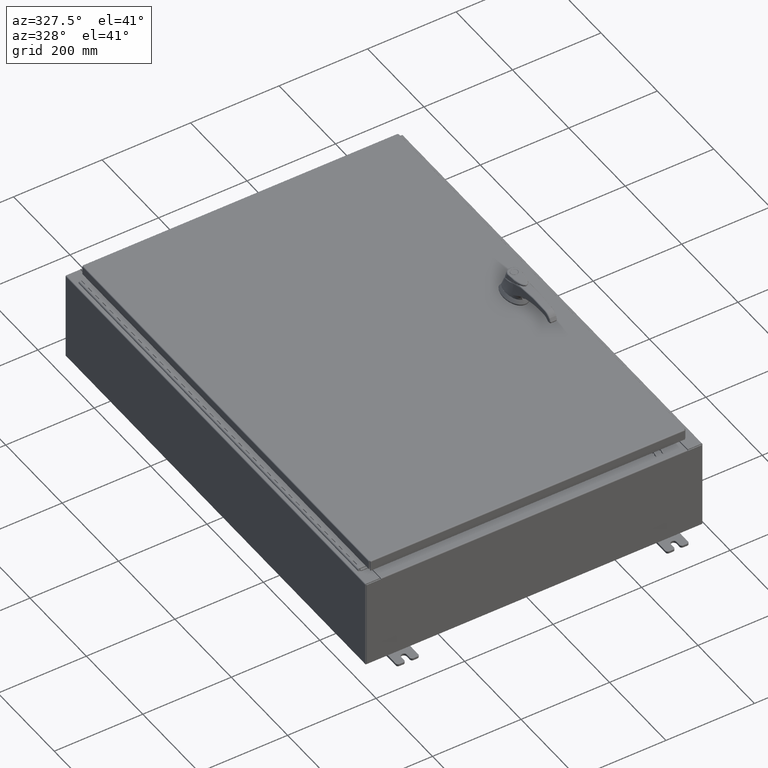
[diagram: clean part render]
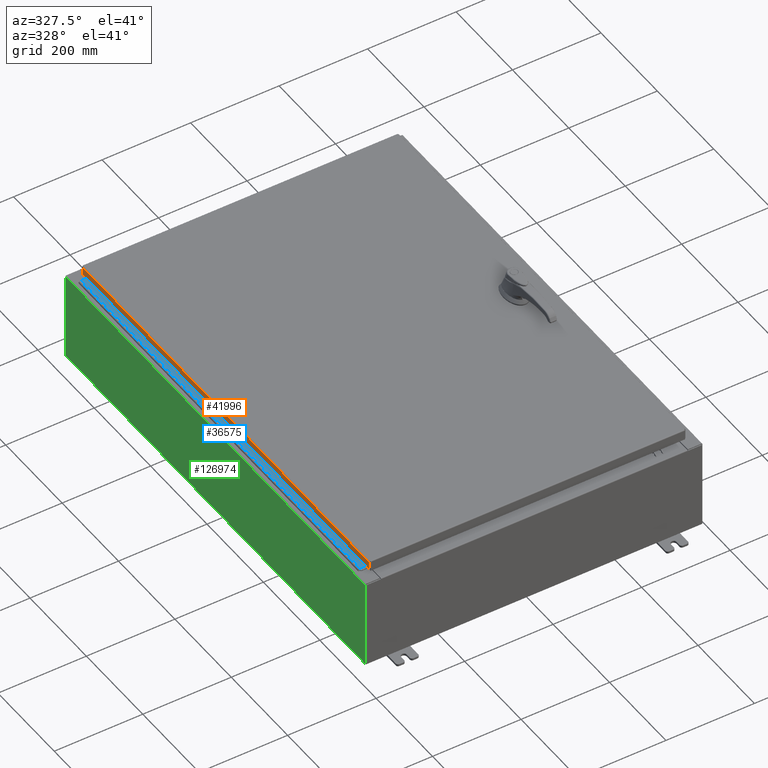
[diagram: same view with three faces highlighted in distinct colors, each labeled with its STEP entity id]
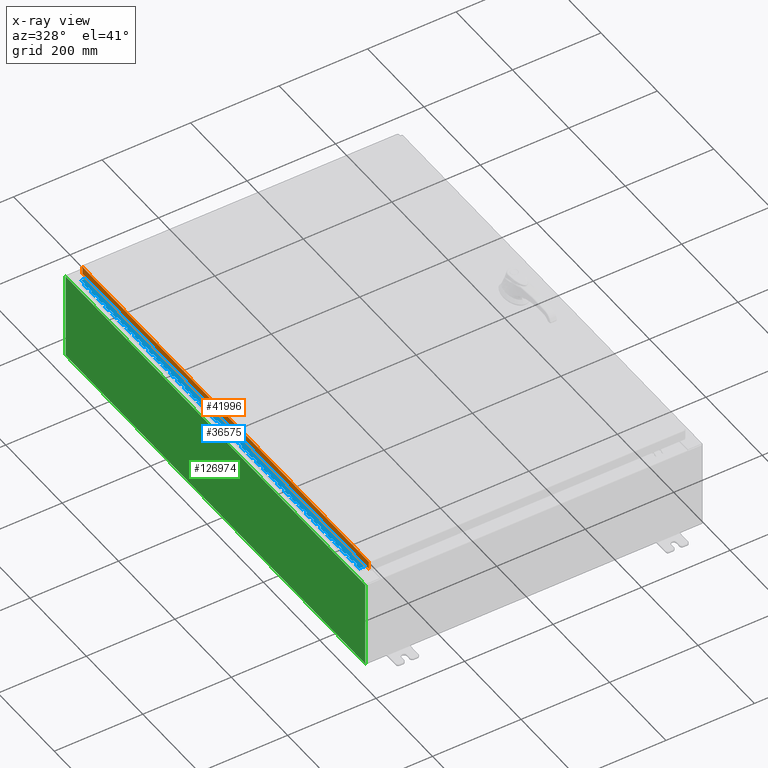
[diagram: x-ray of the same camera — body ghosted, the three highlighted faces saturated]
A machine part, auxiliary view with three faces highlighted in distinct colors.
The next image is the same camera in x-ray (body ghosted, the three faces saturated) — at least one of them is partly hidden behind the body in this view.
Their STEP definitions:

[orange] entity #41996 — the highlighted planar face has unit normal (1, 0, -0).
#120 = PLANE ( 'NONE',  #67719 ) ;
#3596 = DIRECTION ( 'NONE',  ( 4.379057701015054300E-047, 1.000000000000000000, 1.223580767541473800E-016 ) ) ;
#6570 = EDGE_CURVE ( 'NONE', #7761, #116508, #98997, .T. ) ;
#7761 = VERTEX_POINT ( 'NONE', #65073 ) ;
#9866 = EDGE_CURVE ( 'NONE', #7761, #104946, #62677, .T. ) ;
#10089 = DIRECTION ( 'NONE',  ( 1.000000000000000000, 3.712493866327201300E-031, -3.034122441942816500E-015 ) ) ;
#24381 = EDGE_LOOP ( 'NONE', ( #96529, #64665, #62062, #37432 ) ) ;
#25810 = CARTESIAN_POINT ( 'NONE',  ( -14.07799999999999900, 20.00515786437628000, -0.7949999999999948200 ) ) ;
#29916 = CARTESIAN_POINT ( 'NONE',  ( -14.07799999999999900, -20.00515786437626900, -0.7949999999999996000 ) ) ;
#32895 = VECTOR ( 'NONE', #44258, 39.37007874015748100 ) ;
#36218 = VECTOR ( 'NONE', #113776, 39.37007874015748100 ) ;
#37432 = ORIENTED_EDGE ( 'NONE', *, *, #63584, .F. ) ;
#41996 = ADVANCED_FACE ( 'NONE', ( #67602 ), #120, .F. ) ;
#44258 = DIRECTION ( 'NONE',  ( -3.034122441942816500E-015, 6.982962677686267500E-015, -1.000000000000000000 ) ) ;
#46086 = VECTOR ( 'NONE', #122749, 39.37007874015748100 ) ;
#49538 = LINE ( 'NONE', #112677, #72889 ) ;
#62062 = ORIENTED_EDGE ( 'NONE', *, *, #67024, .F. ) ;
#62677 = LINE ( 'NONE', #94307, #36218 ) ;
#63584 = EDGE_CURVE ( 'NONE', #116508, #73858, #92100, .T. ) ;
#64665 = ORIENTED_EDGE ( 'NONE', *, *, #9866, .T. ) ;
#65073 = CARTESIAN_POINT ( 'NONE',  ( -14.07799999999999800, 20.00515786437627200, -0.08770000000000004200 ) ) ;
#65832 = CARTESIAN_POINT ( 'NONE',  ( -14.07799999999999800, -20.00515786437626900, -0.08770000000000007000 ) ) ;
#67024 = EDGE_CURVE ( 'NONE', #73858, #104946, #49538, .T. ) ;
#67602 = FACE_OUTER_BOUND ( 'NONE', #24381, .T. ) ;
#67719 = AXIS2_PLACEMENT_3D ( 'NONE', #69209, #10089, #79667 ) ;
#69209 = CARTESIAN_POINT ( 'NONE',  ( -14.07799999999999800, -5.226448865015432600E-030, 4.297518939368254200E-014 ) ) ;
#72889 = VECTOR ( 'NONE', #3596, 39.37007874015748100 ) ;
#73858 = VERTEX_POINT ( 'NONE', #29916 ) ;
#75851 = CARTESIAN_POINT ( 'NONE',  ( -14.07799999999999800, -20.09400000000000800, -0.08770000000000004200 ) ) ;
#79667 = DIRECTION ( 'NONE',  ( -3.034122441942816500E-015, 0.0000000000000000000, -1.000000000000000000 ) ) ;
#92100 = LINE ( 'NONE', #93867, #32895 ) ;
#93867 = CARTESIAN_POINT ( 'NONE',  ( -14.07799999999999800, -20.00515786437627200, -0.07469999999999976700 ) ) ;
#94307 = CARTESIAN_POINT ( 'NONE',  ( -14.07799999999999800, 20.00515786437627200, 1.826704601218439800E-013 ) ) ;
#96529 = ORIENTED_EDGE ( 'NONE', *, *, #6570, .F. ) ;
#98997 = LINE ( 'NONE', #75851, #46086 ) ;
#104946 = VERTEX_POINT ( 'NONE', #25810 ) ;
#112677 = CARTESIAN_POINT ( 'NONE',  ( -14.07799999999999900, -20.09400000000000800, -0.7949999999999997100 ) ) ;
#113776 = DIRECTION ( 'NONE',  ( -3.034122441942816500E-015, 6.982962677686267500E-015, -1.000000000000000000 ) ) ;
#116508 = VERTEX_POINT ( 'NONE', #65832 ) ;
#122749 = DIRECTION ( 'NONE',  ( 3.712493866327201700E-031, -1.000000000000000000, -1.094373472637052200E-045 ) ) ;

[blue] entity #36575 — the highlighted planar face has unit normal (-0, -0, 1).
#31 = CARTESIAN_POINT ( 'NONE',  ( -0.6869999999999978300, 0.6754999999999996600, -19.50000000000000000 ) ) ;
#51 = LINE ( 'NONE', #66219, #26452 ) ;
#128 = CARTESIAN_POINT ( 'NONE',  ( -0.6869999999999978300, 0.6754999999999996600, -39.00000000000000000 ) ) ;
#206 = ORIENTED_EDGE ( 'NONE', *, *, #98090, .F. ) ;
#325 = VERTEX_POINT ( 'NONE', #2101 ) ;
#577 = EDGE_CURVE ( 'NONE', #35832, #5975, #69017, .T. ) ;
#618 = DIRECTION ( 'NONE',  ( 0.0000000000000000000, 0.0000000000000000000, 1.000000000000000000 ) ) ;
#792 = DIRECTION ( 'NONE',  ( 0.0000000000000000000, -0.0000000000000000000, -1.000000000000000000 ) ) ;
#796 = DIRECTION ( 'NONE',  ( 0.0000000000000000000, 0.0000000000000000000, 1.000000000000000000 ) ) ;
#813 = CARTESIAN_POINT ( 'NONE',  ( -0.6869999999999978300, 0.6754999999999996600, -6.000000000000000900 ) ) ;
#884 = CARTESIAN_POINT ( 'NONE',  ( -0.6869999999999973900, 0.8004999999999995500, -36.00000000000000000 ) ) ;
#913 = LINE ( 'NONE', #124470, #109744 ) ;
#949 = CARTESIAN_POINT ( 'NONE',  ( -0.6869999999999978300, 0.6754999999999996600, -39.00000000000000000 ) ) ;
#1123 = CARTESIAN_POINT ( 'NONE',  ( -0.6869999999999978300, 0.6754999999999996600, -14.99999999999999800 ) ) ;
#1166 = VERTEX_POINT ( 'NONE', #82883 ) ;
#1191 = DIRECTION ( 'NONE',  ( -3.389037039080723100E-015, -1.000000000000000000, 0.0000000000000000000 ) ) ;
#1273 = CARTESIAN_POINT ( 'NONE',  ( -0.6869999999999973900, 0.8004999999999995500, -38.50000000000000000 ) ) ;
#1307 = EDGE_CURVE ( 'NONE', #5598, #61040, #78281, .T. ) ;
#1389 = EDGE_CURVE ( 'NONE', #100426, #5523, #48704, .T. ) ;
#1512 = CARTESIAN_POINT ( 'NONE',  ( -0.6869999999999978300, 0.6754999999999996600, -23.00000000000000000 ) ) ;
#1588 = EDGE_CURVE ( 'NONE', #3765, #121617, #109275, .T. ) ;
#1599 = VERTEX_POINT ( 'NONE', #42857 ) ;
#1615 = EDGE_CURVE ( 'NONE', #115678, #103680, #53358, .T. ) ;
#1625 = LINE ( 'NONE', #87172, #107352 ) ;
#1656 = LINE ( 'NONE', #67209, #51431 ) ;
#1785 = DIRECTION ( 'NONE',  ( 0.0000000000000000000, 0.0000000000000000000, 1.000000000000000000 ) ) ;
#1868 = DIRECTION ( 'NONE',  ( 0.0000000000000000000, -0.0000000000000000000, -1.000000000000000000 ) ) ;
#2083 = VECTOR ( 'NONE', #117598, 39.37007874015748100 ) ;
#2101 = CARTESIAN_POINT ( 'NONE',  ( -0.6869999999999978300, 0.6754999999999996600, 0.0000000000000000000 ) ) ;
#2115 = CARTESIAN_POINT ( 'NONE',  ( -0.6869999999999982800, 0.5504999999999997700, -23.50000000000000000 ) ) ;
#2281 = DIRECTION ( 'NONE',  ( 3.389037039080723100E-015, 1.000000000000000000, -0.0000000000000000000 ) ) ;
#2360 = CARTESIAN_POINT ( 'NONE',  ( -0.6869999999999973900, 0.8004999999999995500, -27.00000000000000000 ) ) ;
#2656 = VERTEX_POINT ( 'NONE', #35595 ) ;
#2756 = LINE ( 'NONE', #104410, #52577 ) ;
#2797 = VERTEX_POINT ( 'NONE', #106836 ) ;
#2802 = CARTESIAN_POINT ( 'NONE',  ( -0.6869999999999973900, 0.8004999999999995500, -28.00000000000000000 ) ) ;
#3038 = LINE ( 'NONE', #76892, #105676 ) ;
#3091 = LINE ( 'NONE', #109427, #79343 ) ;
#3124 = VERTEX_POINT ( 'NONE', #4815 ) ;
#3203 = CARTESIAN_POINT ( 'NONE',  ( -0.6869999999999978300, 0.6754999999999996600, -23.50000000000000000 ) ) ;
#3213 = VERTEX_POINT ( 'NONE', #49841 ) ;
#3351 = CARTESIAN_POINT ( 'NONE',  ( -0.6869999999999982800, 0.5504999999999997700, -17.50000000000000000 ) ) ;
#3765 = VERTEX_POINT ( 'NONE', #111599 ) ;
#3845 = CARTESIAN_POINT ( 'NONE',  ( -0.6869999999999978300, 0.6754999999999996600, -39.00000000000000000 ) ) ;
#4040 = EDGE_CURVE ( 'NONE', #9369, #42471, #128826, .T. ) ;
#4045 = LINE ( 'NONE', #45039, #53875 ) ;
#4071 = EDGE_CURVE ( 'NONE', #120626, #12993, #79142, .T. ) ;
#4122 = DIRECTION ( 'NONE',  ( -3.389037039080723100E-015, -1.000000000000000000, 0.0000000000000000000 ) ) ;
#4145 = CARTESIAN_POINT ( 'NONE',  ( -0.6869999999999978300, 0.6754999999999996600, -1.499999999999999800 ) ) ;
#4391 = ORIENTED_EDGE ( 'NONE', *, *, #77489, .F. ) ;
#4446 = VERTEX_POINT ( 'NONE', #59930 ) ;
#4498 = ORIENTED_EDGE ( 'NONE', *, *, #88135, .F. ) ;
#4625 = VECTOR ( 'NONE', #796, 39.37007874015748100 ) ;
#4734 = VECTOR ( 'NONE', #76987, 39.37007874015748100 ) ;
#4815 = CARTESIAN_POINT ( 'NONE',  ( -0.6869999999999978300, 0.6754999999999996600, -5.000000000000000000 ) ) ;
#4899 = VECTOR ( 'NONE', #72610, 39.37007874015748100 ) ;
#4992 = CARTESIAN_POINT ( 'NONE',  ( -0.6869999999999978300, 0.6754999999999996600, -39.00000000000000000 ) ) ;
#4995 = CARTESIAN_POINT ( 'NONE',  ( -0.6869999999999973900, 0.8004999999999995500, -32.50000000000000000 ) ) ;
#5052 = VERTEX_POINT ( 'NONE', #54463 ) ;
#5105 = DIRECTION ( 'NONE',  ( 0.0000000000000000000, -0.0000000000000000000, -1.000000000000000000 ) ) ;
#5523 = VERTEX_POINT ( 'NONE', #37078 ) ;
#5530 = ORIENTED_EDGE ( 'NONE', *, *, #71035, .T. ) ;
#5569 = CARTESIAN_POINT ( 'NONE',  ( -0.6869999999999978300, 0.6754999999999996600, -39.00000000000000000 ) ) ;
#5598 = VERTEX_POINT ( 'NONE', #78702 ) ;
#5669 = ORIENTED_EDGE ( 'NONE', *, *, #96847, .F. ) ;
#5672 = EDGE_CURVE ( 'NONE', #23404, #66925, #29082, .T. ) ;
#5949 = CARTESIAN_POINT ( 'NONE',  ( -0.6869999999999982800, 0.5504999999999997700, -33.50000000000000000 ) ) ;
#5975 = VERTEX_POINT ( 'NONE', #104486 ) ;
#6139 = DIRECTION ( 'NONE',  ( -3.389037039080723100E-015, -1.000000000000000000, 0.0000000000000000000 ) ) ;
#6168 = DIRECTION ( 'NONE',  ( 0.0000000000000000000, 0.0000000000000000000, 1.000000000000000000 ) ) ;
#6285 = EDGE_CURVE ( 'NONE', #126738, #51296, #11880, .T. ) ;
#6299 = DIRECTION ( 'NONE',  ( 3.369016658928398200E-015, 1.000000000000000000, 0.0000000000000000000 ) ) ;
#6512 = LINE ( 'NONE', #59684, #79628 ) ;
#6616 = LINE ( 'NONE', #85336, #109216 ) ;
#6663 = CARTESIAN_POINT ( 'NONE',  ( -0.6869999999999982800, 0.5504999999999997700, -31.00000000000000000 ) ) ;
#6687 = LINE ( 'NONE', #57204, #109290 ) ;
#6823 = ORIENTED_EDGE ( 'NONE', *, *, #11753, .F. ) ;
#7067 = CARTESIAN_POINT ( 'NONE',  ( -0.6869999999999982800, 0.5504999999999997700, -30.50000000000000400 ) ) ;
#7125 = LINE ( 'NONE', #36118, #27308 ) ;
#7218 = LINE ( 'NONE', #79539, #109832 ) ;
#7324 = EDGE_CURVE ( 'NONE', #17865, #12605, #75566, .T. ) ;
#7602 = DIRECTION ( 'NONE',  ( 0.0000000000000000000, 0.0000000000000000000, 1.000000000000000000 ) ) ;
#7623 = CARTESIAN_POINT ( 'NONE',  ( -0.6869999999999973900, 0.8004999999999995500, -26.50000000000000400 ) ) ;
#7684 = ORIENTED_EDGE ( 'NONE', *, *, #123440, .F. ) ;
#7825 = CARTESIAN_POINT ( 'NONE',  ( -0.6869999999999978300, 0.6754999999999996600, -28.00000000000000000 ) ) ;
#7846 = VECTOR ( 'NONE', #57016, 39.37007874015748100 ) ;
#7942 = EDGE_CURVE ( 'NONE', #36048, #103254, #61420, .T. ) ;
#7981 = VECTOR ( 'NONE', #106276, 39.37007874015748100 ) ;
#8091 = EDGE_CURVE ( 'NONE', #67013, #66585, #48950, .T. ) ;
#8105 = CARTESIAN_POINT ( 'NONE',  ( -0.6869999999999982800, 0.5504999999999997700, -15.50000000000000000 ) ) ;
#8130 = ORIENTED_EDGE ( 'NONE', *, *, #66613, .F. ) ;
#8516 = VECTOR ( 'NONE', #21643, 39.37007874015748100 ) ;
#8561 = VERTEX_POINT ( 'NONE', #33944 ) ;
#8577 = ORIENTED_EDGE ( 'NONE', *, *, #57796, .F. ) ;
#8749 = ORIENTED_EDGE ( 'NONE', *, *, #71136, .F. ) ;
#8814 = LINE ( 'NONE', #63521, #111474 ) ;
#8831 = DIRECTION ( 'NONE',  ( 0.0000000000000000000, -0.0000000000000000000, -1.000000000000000000 ) ) ;
#8860 = EDGE_CURVE ( 'NONE', #45529, #51847, #78400, .T. ) ;
#8910 = CARTESIAN_POINT ( 'NONE',  ( -0.6869999999999973900, 0.8004999999999995500, -26.00000000000000000 ) ) ;
#8924 = EDGE_CURVE ( 'NONE', #127988, #51225, #45705, .T. ) ;
#8937 = CARTESIAN_POINT ( 'NONE',  ( -0.6869999999999982800, 0.5504999999999997700, -0.5000000000000000000 ) ) ;
#9344 = DIRECTION ( 'NONE',  ( 0.0000000000000000000, -0.0000000000000000000, -1.000000000000000000 ) ) ;
#9369 = VERTEX_POINT ( 'NONE', #86115 ) ;
#9560 = ORIENTED_EDGE ( 'NONE', *, *, #35501, .T. ) ;
#9820 = LINE ( 'NONE', #102267, #12950 ) ;
#9889 = VECTOR ( 'NONE', #92707, 39.37007874015748100 ) ;
#9908 = ORIENTED_EDGE ( 'NONE', *, *, #32533, .F. ) ;
#10131 = DIRECTION ( 'NONE',  ( -3.389037039080723100E-015, -1.000000000000000000, 0.0000000000000000000 ) ) ;
#10161 = CARTESIAN_POINT ( 'NONE',  ( -0.6869999999999978300, 0.6754999999999996600, -35.00000000000000000 ) ) ;
#10381 = CARTESIAN_POINT ( 'NONE',  ( -0.6869999999999978300, 0.6754999999999996600, -1.000000000000000000 ) ) ;
#10429 = LINE ( 'NONE', #7067, #63338 ) ;
#10828 = CARTESIAN_POINT ( 'NONE',  ( -0.6869999999999973900, 0.8004999999999995500, -7.499999999999999100 ) ) ;
#10996 = CARTESIAN_POINT ( 'NONE',  ( -0.6869999999999973900, 0.8004999999999995500, -30.50000000000000400 ) ) ;
#11144 = CARTESIAN_POINT ( 'NONE',  ( -0.6869999999999973900, 0.8004999999999995500, -37.50000000000000000 ) ) ;
#11538 = CARTESIAN_POINT ( 'NONE',  ( -0.6869999999999973900, 0.8004999999999995500, -19.00000000000000000 ) ) ;
#11753 = EDGE_CURVE ( 'NONE', #29217, #33639, #105930, .T. ) ;
#11779 = ORIENTED_EDGE ( 'NONE', *, *, #82481, .F. ) ;
#11787 = EDGE_CURVE ( 'NONE', #118797, #102182, #46857, .T. ) ;
#11818 = CARTESIAN_POINT ( 'NONE',  ( -0.6869999999999978300, 0.6754999999999996600, -34.50000000000000000 ) ) ;
#11821 = CARTESIAN_POINT ( 'NONE',  ( -0.6869999999999982800, 0.5504999999999997700, -7.499999999999999100 ) ) ;
#11853 = CARTESIAN_POINT ( 'NONE',  ( -0.6869999999999982800, 0.5504999999999997700, -21.50000000000000400 ) ) ;
#11880 = LINE ( 'NONE', #97942, #38301 ) ;
#11993 = CARTESIAN_POINT ( 'NONE',  ( -0.6869999999999978300, 0.6754999999999996600, -4.500000000000000000 ) ) ;
#12174 = EDGE_CURVE ( 'NONE', #43094, #45529, #45215, .T. ) ;
#12233 = VERTEX_POINT ( 'NONE', #117930 ) ;
#12327 = VECTOR ( 'NONE', #22102, 39.37007874015748100 ) ;
#12378 = VECTOR ( 'NONE', #93360, 39.37007874015748100 ) ;
#12539 = ORIENTED_EDGE ( 'NONE', *, *, #75071, .F. ) ;
#12593 = CARTESIAN_POINT ( 'NONE',  ( -0.6869999999999973900, 0.8004999999999995500, -34.50000000000000000 ) ) ;
#12605 = VERTEX_POINT ( 'NONE', #13557 ) ;
#12621 = CARTESIAN_POINT ( 'NONE',  ( -0.6869999999999973900, 0.8004999999999995500, -23.50000000000000000 ) ) ;
#12690 = EDGE_CURVE ( 'NONE', #48679, #325, #125984, .T. ) ;
#12742 = LINE ( 'NONE', #77533, #65633 ) ;
#12788 = ORIENTED_EDGE ( 'NONE', *, *, #38725, .F. ) ;
#12950 = VECTOR ( 'NONE', #42716, 39.37007874015748100 ) ;
#12968 = CARTESIAN_POINT ( 'NONE',  ( -0.6869999999999978300, 0.6754999999999996600, -20.50000000000000400 ) ) ;
#12993 = VERTEX_POINT ( 'NONE', #78684 ) ;
#13071 = VERTEX_POINT ( 'NONE', #99121 ) ;
#13168 = CARTESIAN_POINT ( 'NONE',  ( -0.6869999999999982800, 0.5504999999999997700, -9.500000000000000000 ) ) ;
#13182 = CARTESIAN_POINT ( 'NONE',  ( -0.6869999999999982800, 0.5504999999999997700, -11.50000000000000000 ) ) ;
#13368 = VERTEX_POINT ( 'NONE', #75570 ) ;
#13386 = LINE ( 'NONE', #91204, #112891 ) ;
#13557 = CARTESIAN_POINT ( 'NONE',  ( -0.6869999999999978300, 0.6754999999999996600, -22.00000000000000000 ) ) ;
#13685 = EDGE_CURVE ( 'NONE', #103688, #92766, #107173, .T. ) ;
#13713 = CARTESIAN_POINT ( 'NONE',  ( -0.6869999999999973900, 0.8004999999999995500, -34.00000000000000000 ) ) ;
#13727 = LINE ( 'NONE', #121736, #89975 ) ;
#13775 = LINE ( 'NONE', #27885, #66657 ) ;
#13856 = VECTOR ( 'NONE', #54614, 39.37007874015748100 ) ;
#13890 = ORIENTED_EDGE ( 'NONE', *, *, #90032, .T. ) ;
#13914 = CARTESIAN_POINT ( 'NONE',  ( -0.6869999999999973900, 0.8004999999999995500, -2.999999999999999600 ) ) ;
#14198 = DIRECTION ( 'NONE',  ( 3.389037039080723100E-015, 1.000000000000000000, -0.0000000000000000000 ) ) ;
#14265 = CARTESIAN_POINT ( 'NONE',  ( -0.6869999999999982800, 0.5504999999999997700, -32.50000000000000000 ) ) ;
#14302 = EDGE_CURVE ( 'NONE', #118277, #109664, #109103, .T. ) ;
#14361 = CARTESIAN_POINT ( 'NONE',  ( -0.6869999999999982800, 0.5504999999999997700, -20.50000000000000400 ) ) ;
#14448 = ORIENTED_EDGE ( 'NONE', *, *, #28570, .F. ) ;
#14455 = VECTOR ( 'NONE', #84597, 39.37007874015748100 ) ;
#14460 = ORIENTED_EDGE ( 'NONE', *, *, #106414, .F. ) ;
#14766 = EDGE_CURVE ( 'NONE', #102474, #17683, #31274, .T. ) ;
#14774 = LINE ( 'NONE', #38610, #117401 ) ;
#14853 = CARTESIAN_POINT ( 'NONE',  ( -0.6869999999999982800, 0.5504999999999997700, -39.00000000000000000 ) ) ;
#15400 = ORIENTED_EDGE ( 'NONE', *, *, #30290, .F. ) ;
#15438 = CARTESIAN_POINT ( 'NONE',  ( -0.6869999999999978300, 0.6754999999999996600, -17.99999999999999600 ) ) ;
#15593 = LINE ( 'NONE', #12593, #91828 ) ;
#15697 = CARTESIAN_POINT ( 'NONE',  ( -0.6869999999999982800, 0.5504999999999997700, -27.00000000000000000 ) ) ;
#15935 = CARTESIAN_POINT ( 'NONE',  ( -0.6869999999999982800, 0.5504999999999997700, -10.50000000000000000 ) ) ;
#15977 = VERTEX_POINT ( 'NONE', #126200 ) ;
#16191 = VECTOR ( 'NONE', #122785, 39.37007874015748100 ) ;
#16485 = EDGE_CURVE ( 'NONE', #12233, #106012, #57562, .T. ) ;
#16678 = CARTESIAN_POINT ( 'NONE',  ( -0.6869999999999973900, 0.8004999999999995500, -21.50000000000000400 ) ) ;
#16722 = EDGE_CURVE ( 'NONE', #70676, #92790, #88599, .T. ) ;
#16776 = LINE ( 'NONE', #119140, #69631 ) ;
#16949 = VERTEX_POINT ( 'NONE', #66312 ) ;
#17048 = VECTOR ( 'NONE', #31535, 39.37007874015748100 ) ;
#17115 = CARTESIAN_POINT ( 'NONE',  ( -0.6869999999999978300, 0.6754999999999996600, -16.00000000000000000 ) ) ;
#17311 = DIRECTION ( 'NONE',  ( 3.389037039080723100E-015, 1.000000000000000000, -0.0000000000000000000 ) ) ;
#17367 = EDGE_CURVE ( 'NONE', #125126, #109389, #54336, .T. ) ;
#17418 = CARTESIAN_POINT ( 'NONE',  ( -0.6869999999999982800, 0.5504999999999997700, -17.99999999999999600 ) ) ;
#17516 = EDGE_CURVE ( 'NONE', #28834, #61040, #91639, .T. ) ;
#17538 = CARTESIAN_POINT ( 'NONE',  ( -0.6869999999999978300, 0.6754999999999996600, -17.50000000000000000 ) ) ;
#17546 = CARTESIAN_POINT ( 'NONE',  ( -0.6869999999999978300, 0.6754999999999996600, -39.00000000000000000 ) ) ;
#17580 = LINE ( 'NONE', #4995, #14455 ) ;
#17669 = DIRECTION ( 'NONE',  ( 0.0000000000000000000, 0.0000000000000000000, 1.000000000000000000 ) ) ;
#17683 = VERTEX_POINT ( 'NONE', #27323 ) ;
#17687 = LINE ( 'NONE', #36207, #123357 ) ;
#17865 = VERTEX_POINT ( 'NONE', #100305 ) ;
#17934 = LINE ( 'NONE', #30582, #94149 ) ;
#17948 = CARTESIAN_POINT ( 'NONE',  ( -0.6869999999999982800, 0.5504999999999997700, -11.50000000000000000 ) ) ;
#17971 = CARTESIAN_POINT ( 'NONE',  ( -0.6869999999999978300, 0.6754999999999996600, -39.00000000000000000 ) ) ;
#17992 = EDGE_CURVE ( 'NONE', #19421, #105530, #90006, .T. ) ;
#18153 = CARTESIAN_POINT ( 'NONE',  ( -0.6869999999999982800, 0.5504999999999997700, -29.99999999999999600 ) ) ;
#18276 = DIRECTION ( 'NONE',  ( 0.0000000000000000000, -0.0000000000000000000, -1.000000000000000000 ) ) ;
#18701 = LINE ( 'NONE', #14361, #41984 ) ;
#18756 = CARTESIAN_POINT ( 'NONE',  ( -0.6869999999999978300, 0.6754999999999996600, -9.000000000000000000 ) ) ;
#18856 = ORIENTED_EDGE ( 'NONE', *, *, #73087, .F. ) ;
#19187 = LINE ( 'NONE', #29737, #121811 ) ;
#19278 = VECTOR ( 'NONE', #99356, 39.37007874015748100 ) ;
#19421 = VERTEX_POINT ( 'NONE', #33335 ) ;
#19481 = ORIENTED_EDGE ( 'NONE', *, *, #79391, .F. ) ;
#19562 = DIRECTION ( 'NONE',  ( 0.0000000000000000000, -0.0000000000000000000, -1.000000000000000000 ) ) ;
#19628 = CARTESIAN_POINT ( 'NONE',  ( -0.6869999999999982800, 0.5504999999999997700, -19.50000000000000000 ) ) ;
#19908 = VECTOR ( 'NONE', #48429, 39.37007874015748100 ) ;
#20162 = VERTEX_POINT ( 'NONE', #94364 ) ;
#20282 = VERTEX_POINT ( 'NONE', #58636 ) ;
#20371 = LINE ( 'NONE', #115839, #96614 ) ;
#20400 = VERTEX_POINT ( 'NONE', #99861 ) ;
#20406 = VECTOR ( 'NONE', #103636, 39.37007874015748100 ) ;
#20437 = EDGE_CURVE ( 'NONE', #35957, #117905, #83413, .T. ) ;
#20644 = VERTEX_POINT ( 'NONE', #64164 ) ;
#20698 = DIRECTION ( 'NONE',  ( 3.389037039080723100E-015, 1.000000000000000000, -0.0000000000000000000 ) ) ;
#20775 = LINE ( 'NONE', #54712, #120284 ) ;
#20904 = VERTEX_POINT ( 'NONE', #100196 ) ;
#21340 = VECTOR ( 'NONE', #99098, 39.37007874015748100 ) ;
#21360 = ORIENTED_EDGE ( 'NONE', *, *, #1307, .F. ) ;
#21567 = CARTESIAN_POINT ( 'NONE',  ( -0.6869999999999982800, 0.5504999999999997700, -14.49999999999999800 ) ) ;
#21643 = DIRECTION ( 'NONE',  ( 3.389037039080723100E-015, 1.000000000000000000, -0.0000000000000000000 ) ) ;
#21675 = ORIENTED_EDGE ( 'NONE', *, *, #48727, .F. ) ;
#21704 = LINE ( 'NONE', #80571, #124283 ) ;
#21742 = LINE ( 'NONE', #93883, #94897 ) ;
#21826 = VECTOR ( 'NONE', #51560, 39.37007874015748100 ) ;
#22102 = DIRECTION ( 'NONE',  ( -3.389037039080723100E-015, -1.000000000000000000, 0.0000000000000000000 ) ) ;
#22187 = CARTESIAN_POINT ( 'NONE',  ( -0.6869999999999982800, 0.5504999999999997700, -14.00000000000000000 ) ) ;
#22381 = ORIENTED_EDGE ( 'NONE', *, *, #35218, .F. ) ;
#22386 = VECTOR ( 'NONE', #47660, 39.37007874015748100 ) ;
#22504 = DIRECTION ( 'NONE',  ( 0.0000000000000000000, 0.0000000000000000000, 1.000000000000000000 ) ) ;
#22514 = ORIENTED_EDGE ( 'NONE', *, *, #71543, .F. ) ;
#22642 = LINE ( 'NONE', #125713, #72443 ) ;
#22678 = ORIENTED_EDGE ( 'NONE', *, *, #64946, .F. ) ;
#22699 = LINE ( 'NONE', #48956, #75645 ) ;
#22829 = VERTEX_POINT ( 'NONE', #111537 ) ;
#22840 = LINE ( 'NONE', #5949, #122344 ) ;
#22997 = VERTEX_POINT ( 'NONE', #4145 ) ;
#23190 = LINE ( 'NONE', #13182, #125776 ) ;
#23256 = VERTEX_POINT ( 'NONE', #67550 ) ;
#23354 = CARTESIAN_POINT ( 'NONE',  ( -0.6869999999999998300, 0.07549999999999991400, -39.00000000000000000 ) ) ;
#23404 = VERTEX_POINT ( 'NONE', #108357 ) ;
#23451 = LINE ( 'NONE', #71845, #122933 ) ;
#23645 = ORIENTED_EDGE ( 'NONE', *, *, #54760, .F. ) ;
#23692 = VECTOR ( 'NONE', #6168, 39.37007874015748100 ) ;
#23703 = CARTESIAN_POINT ( 'NONE',  ( -0.6869999999999982800, 0.5504999999999997700, -22.50000000000000000 ) ) ;
#23769 = CARTESIAN_POINT ( 'NONE',  ( -0.6869999999999973900, 0.8004999999999995500, -4.000000000000000000 ) ) ;
#23916 = LINE ( 'NONE', #69704, #100118 ) ;
#24020 = VECTOR ( 'NONE', #125910, 39.37007874015748100 ) ;
#24041 = CARTESIAN_POINT ( 'NONE',  ( -0.6869999999999982800, 0.5504999999999997700, -5.500000000000000000 ) ) ;
#24055 = EDGE_CURVE ( 'NONE', #96510, #3765, #112546, .T. ) ;
#24140 = LINE ( 'NONE', #99743, #70804 ) ;
#24146 = VECTOR ( 'NONE', #56211, 39.37007874015748100 ) ;
#24155 = ORIENTED_EDGE ( 'NONE', *, *, #104214, .F. ) ;
#24261 = VERTEX_POINT ( 'NONE', #31 ) ;
#24314 = DIRECTION ( 'NONE',  ( 0.0000000000000000000, 0.0000000000000000000, 1.000000000000000000 ) ) ;
#24318 = ORIENTED_EDGE ( 'NONE', *, *, #31954, .F. ) ;
#24405 = EDGE_LOOP ( 'NONE', ( #4498, #9560, #7684, #113602, #51086, #21360, #41643, #105842, #31389, #108576, #8749, #87811, #64922, #40297, #51754, #38930, #119577, #93995, #46333, #24318, #53488, #126411, #59803, #50725, #105778, #206, #97675, #109235, #76186, #68018, #24155, #75150, #96129, #48075, #11779, #15400, #43920, #27000, #48187, #12788, #80428, #85666, #4391, #12539, #48755, #126966, #82244, #84296, #94103, #19481, #60806, #9908, #69125, #123979, #42172, #25157, #13890, #32558, #64214, #14448, #75057, #100398, #86019, #81848, #103553, #118174, #124941, #86021, #26356, #118247, #127809, #78446, #44918, #51548, #48588, #128055, #58330, #77001, #28993, #69335, #55003, #104175, #119769, #6823, #63332, #84000, #40898, #62614, #113852, #120277, #23645, #92392, #128504, #63132, #108087, #80197, #90411, #122946, #111026, #103268, #55652, #80574, #8577, #103134, #41592, #30206, #105260, #39181, #24438, #52532, #106674, #81902, #122825, #21675, #92695, #26285, #32179, #121634, #67289, #48936, #124136, #30790, #67704, #124459, #24773, #14460, #81830, #126817, #33229, #32615, #94420, #18856, #99681, #94508, #87032, #90298, #115913, #8130, #5669, #22678, #57079, #37641, #22514, #115373, #100824, #91318, #60250, #71009, #50090, #22381, #118611, #116283, #5530, #127686, #48451, #101945, #88792, #99275 ) ) ;
#24438 = ORIENTED_EDGE ( 'NONE', *, *, #117573, .T. ) ;
#24643 = CARTESIAN_POINT ( 'NONE',  ( -0.6869999999999978300, 0.6754999999999996600, -33.50000000000000000 ) ) ;
#24690 = VERTEX_POINT ( 'NONE', #52876 ) ;
#24773 = ORIENTED_EDGE ( 'NONE', *, *, #46592, .T. ) ;
#24793 = LINE ( 'NONE', #8910, #100965 ) ;
#24922 = EDGE_CURVE ( 'NONE', #16949, #5598, #6687, .T. ) ;
#24981 = VERTEX_POINT ( 'NONE', #28001 ) ;
#25157 = ORIENTED_EDGE ( 'NONE', *, *, #42535, .F. ) ;
#25199 = DIRECTION ( 'NONE',  ( 0.0000000000000000000, -0.0000000000000000000, -1.000000000000000000 ) ) ;
#25234 = LINE ( 'NONE', #67466, #127814 ) ;
#25406 = VECTOR ( 'NONE', #48479, 39.37007874015748100 ) ;
#25438 = CARTESIAN_POINT ( 'NONE',  ( -0.6869999999999982800, 0.5504999999999997700, -28.99999999999999600 ) ) ;
#25722 = DIRECTION ( 'NONE',  ( 3.389037039080723100E-015, 1.000000000000000000, -0.0000000000000000000 ) ) ;
#26115 = LINE ( 'NONE', #58112, #75945 ) ;
#26197 = LINE ( 'NONE', #15935, #128790 ) ;
#26285 = ORIENTED_EDGE ( 'NONE', *, *, #47045, .F. ) ;
#26356 = ORIENTED_EDGE ( 'NONE', *, *, #125104, .T. ) ;
#26452 = VECTOR ( 'NONE', #46242, 39.37007874015748100 ) ;
#26702 = CARTESIAN_POINT ( 'NONE',  ( -0.6869999999999982800, 0.5504999999999997700, -29.50000000000000000 ) ) ;
#26793 = VERTEX_POINT ( 'NONE', #76557 ) ;
#26910 = CARTESIAN_POINT ( 'NONE',  ( -0.6869999999999982800, 0.5504999999999997700, -18.50000000000000000 ) ) ;
#26984 = CARTESIAN_POINT ( 'NONE',  ( -0.6869999999999982800, 0.5504999999999997700, -2.999999999999999600 ) ) ;
#27000 = ORIENTED_EDGE ( 'NONE', *, *, #6285, .F. ) ;
#27178 = EDGE_CURVE ( 'NONE', #23256, #107775, #44068, .T. ) ;
#27306 = VECTOR ( 'NONE', #59673, 39.37007874015748100 ) ;
#27308 = VECTOR ( 'NONE', #6139, 39.37007874015748100 ) ;
#27323 = CARTESIAN_POINT ( 'NONE',  ( -0.6869999999999982800, 0.5504999999999997700, -6.000000000000000900 ) ) ;
#27472 = DIRECTION ( 'NONE',  ( 0.0000000000000000000, 0.0000000000000000000, 1.000000000000000000 ) ) ;
#27562 = EDGE_CURVE ( 'NONE', #55803, #51296, #95402, .T. ) ;
#27885 = CARTESIAN_POINT ( 'NONE',  ( -0.6869999999999973900, 0.8004999999999995500, -33.50000000000000000 ) ) ;
#28001 = CARTESIAN_POINT ( 'NONE',  ( -0.6869999999999978300, 0.6754999999999996600, -8.500000000000000000 ) ) ;
#28038 = LINE ( 'NONE', #11538, #21826 ) ;
#28153 = DIRECTION ( 'NONE',  ( 3.389037039080723100E-015, 1.000000000000000000, -0.0000000000000000000 ) ) ;
#28184 = CARTESIAN_POINT ( 'NONE',  ( -0.6869999999999982800, 0.5504999999999997700, -12.99999999999999800 ) ) ;
#28380 = VERTEX_POINT ( 'NONE', #14853 ) ;
#28467 = VECTOR ( 'NONE', #53168, 39.37007874015748100 ) ;
#28494 = LINE ( 'NONE', #98056, #25406 ) ;
#28570 = EDGE_CURVE ( 'NONE', #101735, #120626, #107800, .T. ) ;
#28593 = EDGE_CURVE ( 'NONE', #113191, #96510, #28494, .T. ) ;
#28711 = EDGE_CURVE ( 'NONE', #30048, #126738, #19187, .T. ) ;
#28834 = VERTEX_POINT ( 'NONE', #80206 ) ;
#28845 = DIRECTION ( 'NONE',  ( 3.389037039080723100E-015, 1.000000000000000000, -0.0000000000000000000 ) ) ;
#28993 = ORIENTED_EDGE ( 'NONE', *, *, #31701, .F. ) ;
#29082 = LINE ( 'NONE', #108024, #52476 ) ;
#29217 = VERTEX_POINT ( 'NONE', #109552 ) ;
#29314 = VERTEX_POINT ( 'NONE', #120410 ) ;
#29426 = VERTEX_POINT ( 'NONE', #103396 ) ;
#29651 = DIRECTION ( 'NONE',  ( 3.389037039080723100E-015, 1.000000000000000000, -0.0000000000000000000 ) ) ;
#29737 = CARTESIAN_POINT ( 'NONE',  ( -0.6869999999999982800, 0.5504999999999997700, -29.50000000000000000 ) ) ;
#30048 = VERTEX_POINT ( 'NONE', #26702 ) ;
#30206 = ORIENTED_EDGE ( 'NONE', *, *, #64667, .F. ) ;
#30290 = EDGE_CURVE ( 'NONE', #55803, #36403, #121557, .T. ) ;
#30582 = CARTESIAN_POINT ( 'NONE',  ( -0.6869999999999978300, 0.6754999999999996600, -39.00000000000000000 ) ) ;
#30638 = LINE ( 'NONE', #85900, #106871 ) ;
#30670 = VERTEX_POINT ( 'NONE', #17115 ) ;
#30790 = ORIENTED_EDGE ( 'NONE', *, *, #65962, .F. ) ;
#30963 = LINE ( 'NONE', #7623, #63706 ) ;
#31011 = CARTESIAN_POINT ( 'NONE',  ( -0.6869999999999973900, 0.8004999999999995500, -17.99999999999999600 ) ) ;
#31181 = VECTOR ( 'NONE', #19562, 39.37007874015748100 ) ;
#31274 = LINE ( 'NONE', #46776, #7981 ) ;
#31326 = CARTESIAN_POINT ( 'NONE',  ( -0.6869999999999982800, 0.5504999999999997700, -4.500000000000000000 ) ) ;
#31389 = ORIENTED_EDGE ( 'NONE', *, *, #105372, .T. ) ;
#31405 = CARTESIAN_POINT ( 'NONE',  ( -0.6869999999999982800, 0.5504999999999997700, -23.99999999999999600 ) ) ;
#31535 = DIRECTION ( 'NONE',  ( 0.0000000000000000000, -0.0000000000000000000, -1.000000000000000000 ) ) ;
#31701 = EDGE_CURVE ( 'NONE', #26793, #24690, #80943, .T. ) ;
#31765 = CARTESIAN_POINT ( 'NONE',  ( -0.6869999999999978300, 0.6754999999999996600, -9.500000000000000000 ) ) ;
#31850 = CARTESIAN_POINT ( 'NONE',  ( -0.6869999999999982800, 0.5504999999999997700, -36.50000000000000000 ) ) ;
#31954 = EDGE_CURVE ( 'NONE', #51618, #77225, #15593, .T. ) ;
#32173 = CARTESIAN_POINT ( 'NONE',  ( -0.6869999999999973900, 0.8004999999999995500, -32.00000000000000000 ) ) ;
#32179 = ORIENTED_EDGE ( 'NONE', *, *, #48836, .T. ) ;
#32208 = LINE ( 'NONE', #17971, #58704 ) ;
#32533 = EDGE_CURVE ( 'NONE', #29314, #70749, #30963, .T. ) ;
#32558 = ORIENTED_EDGE ( 'NONE', *, *, #52064, .F. ) ;
#32615 = ORIENTED_EDGE ( 'NONE', *, *, #124230, .F. ) ;
#32645 = FACE_OUTER_BOUND ( 'NONE', #24405, .T. ) ;
#32654 = EDGE_CURVE ( 'NONE', #107775, #1166, #24793, .T. ) ;
#33003 = VERTEX_POINT ( 'NONE', #57922 ) ;
#33229 = ORIENTED_EDGE ( 'NONE', *, *, #122296, .T. ) ;
#33335 = CARTESIAN_POINT ( 'NONE',  ( -0.6869999999999978300, 0.6754999999999996600, -14.49999999999999800 ) ) ;
#33373 = CARTESIAN_POINT ( 'NONE',  ( -0.6869999999999978300, 0.6754999999999996600, -29.50000000000000000 ) ) ;
#33467 = DIRECTION ( 'NONE',  ( 0.0000000000000000000, 0.0000000000000000000, 1.000000000000000000 ) ) ;
#33639 = VERTEX_POINT ( 'NONE', #26910 ) ;
#33896 = CARTESIAN_POINT ( 'NONE',  ( -0.6869999999999982800, 0.5504999999999997700, -2.500000000000000000 ) ) ;
#33944 = CARTESIAN_POINT ( 'NONE',  ( -0.6869999999999978300, 0.6754999999999996600, -11.50000000000000000 ) ) ;
#34266 = CARTESIAN_POINT ( 'NONE',  ( -0.6869999999999982800, 0.5504999999999997700, -2.500000000000000000 ) ) ;
#34286 = VECTOR ( 'NONE', #79424, 39.37007874015748100 ) ;
#34306 = EDGE_CURVE ( 'NONE', #20162, #55844, #94569, .T. ) ;
#34341 = LINE ( 'NONE', #49540, #31181 ) ;
#34387 = VECTOR ( 'NONE', #89205, 39.37007874015748100 ) ;
#34477 = VERTEX_POINT ( 'NONE', #39369 ) ;
#34505 = VECTOR ( 'NONE', #123584, 39.37007874015748100 ) ;
#34753 = VECTOR ( 'NONE', #101353, 39.37007874015748100 ) ;
#34807 = CARTESIAN_POINT ( 'NONE',  ( -0.6869999999999982800, 0.5504999999999997700, -35.50000000000000000 ) ) ;
#34931 = LINE ( 'NONE', #79172, #61395 ) ;
#35218 = EDGE_CURVE ( 'NONE', #92766, #66585, #8814, .T. ) ;
#35229 = LINE ( 'NONE', #63689, #52369 ) ;
#35501 = EDGE_CURVE ( 'NONE', #82134, #28380, #122310, .T. ) ;
#35595 = CARTESIAN_POINT ( 'NONE',  ( -0.6869999999999982800, 0.5504999999999997700, -8.500000000000000000 ) ) ;
#35671 = EDGE_CURVE ( 'NONE', #96287, #96280, #7218, .T. ) ;
#35832 = VERTEX_POINT ( 'NONE', #62107 ) ;
#35833 = CARTESIAN_POINT ( 'NONE',  ( -0.6870000000000022800, -0.6245000000000003900, -39.00000000000000000 ) ) ;
#35957 = VERTEX_POINT ( 'NONE', #14265 ) ;
#36048 = VERTEX_POINT ( 'NONE', #38101 ) ;
#36060 = VECTOR ( 'NONE', #61924, 39.37007874015748100 ) ;
#36118 = CARTESIAN_POINT ( 'NONE',  ( -0.6869999999999973900, 0.8004999999999995500, -2.500000000000000000 ) ) ;
#36146 = LINE ( 'NONE', #57334, #56403 ) ;
#36207 = CARTESIAN_POINT ( 'NONE',  ( -0.6869999999999973900, 0.8004999999999995500, -11.99999999999999800 ) ) ;
#36256 = LINE ( 'NONE', #107982, #89192 ) ;
#36403 = VERTEX_POINT ( 'NONE', #122766 ) ;
#36575 = ADVANCED_FACE ( 'NONE', ( #32645 ), #125328, .T. ) ;
#36653 = VERTEX_POINT ( 'NONE', #125755 ) ;
#36679 = CARTESIAN_POINT ( 'NONE',  ( -0.6869999999999978300, 0.6754999999999996600, -29.99999999999999600 ) ) ;
#36804 = LINE ( 'NONE', #68890, #86624 ) ;
#36851 = VERTEX_POINT ( 'NONE', #120928 ) ;
#36951 = CARTESIAN_POINT ( 'NONE',  ( -0.6870000000000022800, -0.6245000000000003900, -39.00000000000000000 ) ) ;
#37040 = CARTESIAN_POINT ( 'NONE',  ( -0.6869999999999982800, 0.5504999999999997700, -20.50000000000000400 ) ) ;
#37078 = CARTESIAN_POINT ( 'NONE',  ( -0.6869999999999978300, 0.6754999999999996600, -17.00000000000000000 ) ) ;
#37299 = LINE ( 'NONE', #73112, #60677 ) ;
#37391 = DIRECTION ( 'NONE',  ( 0.0000000000000000000, -0.0000000000000000000, -1.000000000000000000 ) ) ;
#37561 = DIRECTION ( 'NONE',  ( 0.0000000000000000000, -0.0000000000000000000, -1.000000000000000000 ) ) ;
#37641 = ORIENTED_EDGE ( 'NONE', *, *, #16722, .F. ) ;
#37695 = DIRECTION ( 'NONE',  ( -3.389037039080723100E-015, -1.000000000000000000, 0.0000000000000000000 ) ) ;
#37867 = DIRECTION ( 'NONE',  ( -3.389037039080723100E-015, -1.000000000000000000, 0.0000000000000000000 ) ) ;
#38101 = CARTESIAN_POINT ( 'NONE',  ( -0.6869999999999982800, 0.5504999999999997700, -23.00000000000000000 ) ) ;
#38271 = CARTESIAN_POINT ( 'NONE',  ( -0.6869999999999982800, 0.5504999999999997700, -14.49999999999999800 ) ) ;
#38278 = CARTESIAN_POINT ( 'NONE',  ( -0.6869999999999982800, 0.5504999999999997700, -14.99999999999999800 ) ) ;
#38301 = VECTOR ( 'NONE', #20698, 39.37007874015748100 ) ;
#38388 = EDGE_CURVE ( 'NONE', #34477, #63995, #13727, .T. ) ;
#38396 = CARTESIAN_POINT ( 'NONE',  ( -0.6869999999999982800, 0.5504999999999997700, -26.50000000000000400 ) ) ;
#38483 = CARTESIAN_POINT ( 'NONE',  ( -0.6869999999999978300, 0.6754999999999996600, -38.00000000000000000 ) ) ;
#38610 = CARTESIAN_POINT ( 'NONE',  ( -0.6869999999999982800, 0.5504999999999997700, -6.499999999999999100 ) ) ;
#38618 = CARTESIAN_POINT ( 'NONE',  ( -0.6869999999999982800, 0.5504999999999997700, -19.00000000000000000 ) ) ;
#38725 = EDGE_CURVE ( 'NONE', #97108, #30048, #74392, .T. ) ;
#38748 = LINE ( 'NONE', #65545, #41870 ) ;
#38845 = CARTESIAN_POINT ( 'NONE',  ( -0.6869999999999978300, 0.6754999999999996600, -16.50000000000000000 ) ) ;
#38913 = VERTEX_POINT ( 'NONE', #100771 ) ;
#38930 = ORIENTED_EDGE ( 'NONE', *, *, #28593, .F. ) ;
#39159 = CARTESIAN_POINT ( 'NONE',  ( -0.6869999999999982800, 0.5504999999999997700, -28.50000000000000000 ) ) ;
#39181 = ORIENTED_EDGE ( 'NONE', *, *, #109598, .F. ) ;
#39284 = CARTESIAN_POINT ( 'NONE',  ( -0.6869999999999978300, 0.6754999999999996600, -7.000000000000000000 ) ) ;
#39369 = CARTESIAN_POINT ( 'NONE',  ( -0.6869999999999978300, 0.6754999999999996600, -13.50000000000000000 ) ) ;
#39646 = LINE ( 'NONE', #57031, #89498 ) ;
#39802 = VECTOR ( 'NONE', #1191, 39.37007874015748100 ) ;
#39891 = DIRECTION ( 'NONE',  ( 0.0000000000000000000, 0.0000000000000000000, 1.000000000000000000 ) ) ;
#40161 = VECTOR ( 'NONE', #81612, 39.37007874015748100 ) ;
#40206 = CARTESIAN_POINT ( 'NONE',  ( -0.6869999999999973900, 0.8004999999999995500, -17.50000000000000000 ) ) ;
#40251 = LINE ( 'NONE', #4992, #13856 ) ;
#40297 = ORIENTED_EDGE ( 'NONE', *, *, #1588, .F. ) ;
#40305 = DIRECTION ( 'NONE',  ( 0.0000000000000000000, -0.0000000000000000000, -1.000000000000000000 ) ) ;
#40739 = CARTESIAN_POINT ( 'NONE',  ( -0.6869999999999973900, 0.8004999999999995500, -25.50000000000000400 ) ) ;
#40793 = CARTESIAN_POINT ( 'NONE',  ( -0.6869999999999982800, 0.5504999999999997700, -35.50000000000000000 ) ) ;
#40799 = EDGE_CURVE ( 'NONE', #64010, #36048, #22699, .T. ) ;
#40898 = ORIENTED_EDGE ( 'NONE', *, *, #110954, .F. ) ;
#41069 = EDGE_CURVE ( 'NONE', #101735, #124828, #56928, .T. ) ;
#41153 = VECTOR ( 'NONE', #126854, 39.37007874015748100 ) ;
#41202 = VERTEX_POINT ( 'NONE', #31326 ) ;
#41406 = CARTESIAN_POINT ( 'NONE',  ( -0.6869999999999973900, 0.8004999999999995500, -38.00000000000000000 ) ) ;
#41582 = EDGE_CURVE ( 'NONE', #84941, #17865, #49026, .T. ) ;
#41592 = ORIENTED_EDGE ( 'NONE', *, *, #38388, .T. ) ;
#41632 = DIRECTION ( 'NONE',  ( 3.389037039080723100E-015, 1.000000000000000000, -0.0000000000000000000 ) ) ;
#41643 = ORIENTED_EDGE ( 'NONE', *, *, #24922, .F. ) ;
#41806 = CARTESIAN_POINT ( 'NONE',  ( -0.6869999999999973900, 0.8004999999999995500, -6.000000000000000900 ) ) ;
#41870 = VECTOR ( 'NONE', #75603, 39.37007874015748100 ) ;
#41946 = DIRECTION ( 'NONE',  ( 0.0000000000000000000, 0.0000000000000000000, 1.000000000000000000 ) ) ;
#41984 = VECTOR ( 'NONE', #25199, 39.37007874015748100 ) ;
#42112 = CARTESIAN_POINT ( 'NONE',  ( -0.6869999999999978300, 0.6754999999999996600, -39.00000000000000000 ) ) ;
#42121 = DIRECTION ( 'NONE',  ( -3.389037039080723100E-015, -1.000000000000000000, 0.0000000000000000000 ) ) ;
#42140 = VERTEX_POINT ( 'NONE', #31765 ) ;
#42172 = ORIENTED_EDGE ( 'NONE', *, *, #27178, .F. ) ;
#42173 = DIRECTION ( 'NONE',  ( 0.0000000000000000000, 0.0000000000000000000, 1.000000000000000000 ) ) ;
#42207 = CARTESIAN_POINT ( 'NONE',  ( -0.6869999999999978300, 0.6754999999999996600, -14.00000000000000000 ) ) ;
#42345 = LINE ( 'NONE', #109557, #65712 ) ;
#42365 = VECTOR ( 'NONE', #29651, 39.37007874015748100 ) ;
#42471 = VERTEX_POINT ( 'NONE', #28184 ) ;
#42535 = EDGE_CURVE ( 'NONE', #22829, #23256, #91136, .T. ) ;
#42680 = CARTESIAN_POINT ( 'NONE',  ( -0.6869999999999982800, 0.5504999999999997700, -36.50000000000000000 ) ) ;
#42716 = DIRECTION ( 'NONE',  ( 3.389037039080723100E-015, 1.000000000000000000, -0.0000000000000000000 ) ) ;
#42766 = VECTOR ( 'NONE', #52790, 39.37007874015748100 ) ;
#42857 = CARTESIAN_POINT ( 'NONE',  ( -0.6869999999999978300, 0.6754999999999996600, -32.50000000000000000 ) ) ;
#42990 = VECTOR ( 'NONE', #46965, 39.37007874015748100 ) ;
#43094 = VERTEX_POINT ( 'NONE', #54104 ) ;
#43236 = CARTESIAN_POINT ( 'NONE',  ( -0.6869999999999978300, 0.6754999999999996600, -10.50000000000000000 ) ) ;
#43240 = CARTESIAN_POINT ( 'NONE',  ( -0.6869999999999978300, 0.6754999999999996600, -12.99999999999999800 ) ) ;
#43488 = CARTESIAN_POINT ( 'NONE',  ( -0.6869999999999982800, 0.5504999999999997700, -12.49999999999999800 ) ) ;
#43830 = EDGE_CURVE ( 'NONE', #48895, #109389, #62909, .T. ) ;
#43920 = ORIENTED_EDGE ( 'NONE', *, *, #27562, .T. ) ;
#43949 = LINE ( 'NONE', #11821, #120159 ) ;
#44068 = LINE ( 'NONE', #63378, #93892 ) ;
#44291 = CARTESIAN_POINT ( 'NONE',  ( -0.6869999999999978300, 0.6754999999999996600, -39.00000000000000000 ) ) ;
#44831 = CARTESIAN_POINT ( 'NONE',  ( -0.6869999999999973900, 0.8004999999999995500, -33.00000000000000000 ) ) ;
#44918 = ORIENTED_EDGE ( 'NONE', *, *, #50956, .T. ) ;
#45039 = CARTESIAN_POINT ( 'NONE',  ( -0.6869999999999973900, 0.8004999999999995500, -19.50000000000000000 ) ) ;
#45215 = LINE ( 'NONE', #67526, #71688 ) ;
#45506 = DIRECTION ( 'NONE',  ( 0.0000000000000000000, -0.0000000000000000000, -1.000000000000000000 ) ) ;
#45529 = VERTEX_POINT ( 'NONE', #60649 ) ;
#45575 = VECTOR ( 'NONE', #122762, 39.37007874015748100 ) ;
#45705 = LINE ( 'NONE', #31011, #19278 ) ;
#45722 = LINE ( 'NONE', #117191, #22386 ) ;
#45881 = EDGE_CURVE ( 'NONE', #105277, #30670, #25234, .T. ) ;
#45901 = DIRECTION ( 'NONE',  ( 0.0000000000000000000, -0.0000000000000000000, -1.000000000000000000 ) ) ;
#46242 = DIRECTION ( 'NONE',  ( 3.389037039080723100E-015, 1.000000000000000000, -0.0000000000000000000 ) ) ;
#46244 = CARTESIAN_POINT ( 'NONE',  ( -0.6869999999999978300, 0.6754999999999996600, -31.00000000000000000 ) ) ;
#46328 = DIRECTION ( 'NONE',  ( 0.0000000000000000000, 0.0000000000000000000, 1.000000000000000000 ) ) ;
#46333 = ORIENTED_EDGE ( 'NONE', *, *, #126031, .F. ) ;
#46337 = VERTEX_POINT ( 'NONE', #38618 ) ;
#46442 = VERTEX_POINT ( 'NONE', #10381 ) ;
#46592 = EDGE_CURVE ( 'NONE', #24981, #92953, #60932, .T. ) ;
#46757 = CARTESIAN_POINT ( 'NONE',  ( -0.6869999999999978300, 0.6754999999999996600, -2.000000000000000000 ) ) ;
#46776 = CARTESIAN_POINT ( 'NONE',  ( -0.6869999999999982800, 0.5504999999999997700, -5.500000000000000000 ) ) ;
#46857 = LINE ( 'NONE', #13713, #20406 ) ;
#46965 = DIRECTION ( 'NONE',  ( 3.369016658928398200E-015, 1.000000000000000000, 0.0000000000000000000 ) ) ;
#47045 = EDGE_CURVE ( 'NONE', #121017, #98324, #59301, .T. ) ;
#47292 = DIRECTION ( 'NONE',  ( 3.369016658928398200E-015, 1.000000000000000000, 0.0000000000000000000 ) ) ;
#47660 = DIRECTION ( 'NONE',  ( 0.0000000000000000000, -0.0000000000000000000, -1.000000000000000000 ) ) ;
#47711 = VERTEX_POINT ( 'NONE', #57771 ) ;
#47742 = DIRECTION ( 'NONE',  ( 0.0000000000000000000, 0.0000000000000000000, 1.000000000000000000 ) ) ;
#47842 = CARTESIAN_POINT ( 'NONE',  ( -0.6869999999999982800, 0.5504999999999997700, -10.50000000000000000 ) ) ;
#47893 = VECTOR ( 'NONE', #49113, 39.37007874015748100 ) ;
#47897 = CARTESIAN_POINT ( 'NONE',  ( -0.6869999999999978300, 0.6754999999999996600, -32.00000000000000000 ) ) ;
#47991 = CARTESIAN_POINT ( 'NONE',  ( -0.6869999999999973900, 0.8004999999999995500, -37.00000000000000000 ) ) ;
#48075 = ORIENTED_EDGE ( 'NONE', *, *, #35671, .F. ) ;
#48187 = ORIENTED_EDGE ( 'NONE', *, *, #28711, .F. ) ;
#48270 = LINE ( 'NONE', #40206, #91857 ) ;
#48397 = VERTEX_POINT ( 'NONE', #10161 ) ;
#48429 = DIRECTION ( 'NONE',  ( -3.389037039080723100E-015, -1.000000000000000000, 0.0000000000000000000 ) ) ;
#48432 = EDGE_CURVE ( 'NONE', #42140, #105555, #101492, .T. ) ;
#48451 = ORIENTED_EDGE ( 'NONE', *, *, #95782, .F. ) ;
#48469 = VECTOR ( 'NONE', #124041, 39.37007874015748100 ) ;
#48479 = DIRECTION ( 'NONE',  ( -3.389037039080723100E-015, -1.000000000000000000, 0.0000000000000000000 ) ) ;
#48511 = DIRECTION ( 'NONE',  ( 0.0000000000000000000, 0.0000000000000000000, 1.000000000000000000 ) ) ;
#48588 = ORIENTED_EDGE ( 'NONE', *, *, #112087, .F. ) ;
#48679 = VERTEX_POINT ( 'NONE', #64857 ) ;
#48704 = LINE ( 'NONE', #3845, #101552 ) ;
#48727 = EDGE_CURVE ( 'NONE', #2797, #95302, #6616, .T. ) ;
#48755 = ORIENTED_EDGE ( 'NONE', *, *, #92467, .T. ) ;
#48793 = VECTOR ( 'NONE', #49194, 39.37007874015748100 ) ;
#48836 = EDGE_CURVE ( 'NONE', #121017, #103644, #76621, .T. ) ;
#48895 = VERTEX_POINT ( 'NONE', #26984 ) ;
#48936 = ORIENTED_EDGE ( 'NONE', *, *, #76512, .F. ) ;
#48950 = LINE ( 'NONE', #92113, #125086 ) ;
#48955 = VERTEX_POINT ( 'NONE', #67844 ) ;
#48956 = CARTESIAN_POINT ( 'NONE',  ( -0.6869999999999982800, 0.5504999999999997700, -22.50000000000000000 ) ) ;
#49026 = LINE ( 'NONE', #82763, #42766 ) ;
#49113 = DIRECTION ( 'NONE',  ( -3.389037039080723100E-015, -1.000000000000000000, 0.0000000000000000000 ) ) ;
#49187 = EDGE_CURVE ( 'NONE', #24981, #2656, #104495, .T. ) ;
#49194 = DIRECTION ( 'NONE',  ( 0.0000000000000000000, -0.0000000000000000000, -1.000000000000000000 ) ) ;
#49271 = LINE ( 'NONE', #12621, #122325 ) ;
#49540 = CARTESIAN_POINT ( 'NONE',  ( -0.6869999999999982800, 0.5504999999999997700, -4.500000000000000000 ) ) ;
#49568 = VECTOR ( 'NONE', #57803, 39.37007874015748100 ) ;
#49669 = LINE ( 'NONE', #120767, #125796 ) ;
#49841 = CARTESIAN_POINT ( 'NONE',  ( -0.6869999999999982800, 0.5504999999999997700, -7.000000000000000000 ) ) ;
#49857 = VERTEX_POINT ( 'NONE', #99725 ) ;
#49930 = CARTESIAN_POINT ( 'NONE',  ( -0.6869999999999982800, 0.5504999999999997700, -6.499999999999999100 ) ) ;
#50085 = CARTESIAN_POINT ( 'NONE',  ( -0.6869999999999973900, 0.8004999999999995500, -7.000000000000000000 ) ) ;
#50090 = ORIENTED_EDGE ( 'NONE', *, *, #8091, .T. ) ;
#50557 = CARTESIAN_POINT ( 'NONE',  ( -0.6869999999999978300, 0.6754999999999996600, -23.99999999999999600 ) ) ;
#50633 = CARTESIAN_POINT ( 'NONE',  ( -0.6869999999999978300, 0.6754999999999996600, -34.00000000000000000 ) ) ;
#50714 = CARTESIAN_POINT ( 'NONE',  ( -0.6869999999999978300, 0.6754999999999996600, -8.000000000000000000 ) ) ;
#50725 = ORIENTED_EDGE ( 'NONE', *, *, #99131, .F. ) ;
#50728 = EDGE_CURVE ( 'NONE', #95396, #96605, #110488, .T. ) ;
#50912 = EDGE_CURVE ( 'NONE', #46337, #29426, #28038, .T. ) ;
#50956 = EDGE_CURVE ( 'NONE', #69512, #125212, #118231, .T. ) ;
#51086 = ORIENTED_EDGE ( 'NONE', *, *, #17516, .T. ) ;
#51103 = DIRECTION ( 'NONE',  ( -3.389037039080723100E-015, -1.000000000000000000, 0.0000000000000000000 ) ) ;
#51225 = VERTEX_POINT ( 'NONE', #15438 ) ;
#51296 = VERTEX_POINT ( 'NONE', #36679 ) ;
#51431 = VECTOR ( 'NONE', #77240, 39.37007874015748100 ) ;
#51440 = DIRECTION ( 'NONE',  ( 0.0000000000000000000, 0.0000000000000000000, 1.000000000000000000 ) ) ;
#51548 = ORIENTED_EDGE ( 'NONE', *, *, #81144, .F. ) ;
#51558 = VECTOR ( 'NONE', #28153, 39.37007874015748100 ) ;
#51560 = DIRECTION ( 'NONE',  ( 3.389037039080723100E-015, 1.000000000000000000, -0.0000000000000000000 ) ) ;
#51618 = VERTEX_POINT ( 'NONE', #11818 ) ;
#51649 = VECTOR ( 'NONE', #120361, 39.37007874015748100 ) ;
#51754 = ORIENTED_EDGE ( 'NONE', *, *, #24055, .F. ) ;
#51847 = VERTEX_POINT ( 'NONE', #7825 ) ;
#51852 = VECTOR ( 'NONE', #99635, 39.37007874015748100 ) ;
#52013 = VECTOR ( 'NONE', #103410, 39.37007874015748100 ) ;
#52064 = EDGE_CURVE ( 'NONE', #12993, #64278, #49669, .T. ) ;
#52191 = EDGE_CURVE ( 'NONE', #1599, #122596, #40251, .T. ) ;
#52369 = VECTOR ( 'NONE', #4122, 39.37007874015748100 ) ;
#52466 = CARTESIAN_POINT ( 'NONE',  ( -0.6869999999999982800, 0.5504999999999997700, -26.00000000000000000 ) ) ;
#52476 = VECTOR ( 'NONE', #51103, 39.37007874015748100 ) ;
#52532 = ORIENTED_EDGE ( 'NONE', *, *, #123936, .F. ) ;
#52577 = VECTOR ( 'NONE', #84495, 39.37007874015748100 ) ;
#52780 = EDGE_CURVE ( 'NONE', #98324, #2797, #26197, .T. ) ;
#52790 = DIRECTION ( 'NONE',  ( 0.0000000000000000000, -0.0000000000000000000, -1.000000000000000000 ) ) ;
#52876 = CARTESIAN_POINT ( 'NONE',  ( -0.6869999999999982800, 0.5504999999999997700, -20.00000000000000000 ) ) ;
#52990 = VERTEX_POINT ( 'NONE', #118411 ) ;
#53091 = VERTEX_POINT ( 'NONE', #39284 ) ;
#53168 = DIRECTION ( 'NONE',  ( 3.389037039080723100E-015, 1.000000000000000000, -0.0000000000000000000 ) ) ;
#53303 = AXIS2_PLACEMENT_3D ( 'NONE', #35833, #65848, #6299 ) ;
#53358 = LINE ( 'NONE', #55054, #62678 ) ;
#53488 = ORIENTED_EDGE ( 'NONE', *, *, #56186, .T. ) ;
#53513 = DIRECTION ( 'NONE',  ( 3.389037039080723100E-015, 1.000000000000000000, -0.0000000000000000000 ) ) ;
#53632 = EDGE_CURVE ( 'NONE', #84522, #102474, #16776, .T. ) ;
#53734 = DIRECTION ( 'NONE',  ( -3.389037039080723100E-015, -1.000000000000000000, 0.0000000000000000000 ) ) ;
#53875 = VECTOR ( 'NONE', #84636, 39.37007874015748100 ) ;
#53942 = CARTESIAN_POINT ( 'NONE',  ( -0.6869999999999978300, 0.6754999999999996600, -11.99999999999999800 ) ) ;
#54104 = CARTESIAN_POINT ( 'NONE',  ( -0.6869999999999982800, 0.5504999999999997700, -27.50000000000000000 ) ) ;
#54150 = CARTESIAN_POINT ( 'NONE',  ( -0.6869999999999973900, 0.8004999999999995500, -16.50000000000000000 ) ) ;
#54336 = LINE ( 'NONE', #121302, #104018 ) ;
#54349 = DIRECTION ( 'NONE',  ( 0.0000000000000000000, 0.0000000000000000000, 1.000000000000000000 ) ) ;
#54463 = CARTESIAN_POINT ( 'NONE',  ( -0.6869999999999982800, 0.5504999999999997700, -35.00000000000000000 ) ) ;
#54530 = VECTOR ( 'NONE', #89183, 39.37007874015748100 ) ;
#54614 = DIRECTION ( 'NONE',  ( 0.0000000000000000000, 0.0000000000000000000, 1.000000000000000000 ) ) ;
#54712 = CARTESIAN_POINT ( 'NONE',  ( -0.6869999999999982800, 0.5504999999999997700, -31.50000000000000400 ) ) ;
#54760 = EDGE_CURVE ( 'NONE', #98983, #92475, #36804, .T. ) ;
#54869 = DIRECTION ( 'NONE',  ( 0.0000000000000000000, 0.0000000000000000000, 1.000000000000000000 ) ) ;
#54914 = CARTESIAN_POINT ( 'NONE',  ( -0.6869999999999973900, 0.8004999999999995500, -10.50000000000000000 ) ) ;
#55003 = ORIENTED_EDGE ( 'NONE', *, *, #99775, .T. ) ;
#55054 = CARTESIAN_POINT ( 'NONE',  ( -0.6869999999999973900, 0.8004999999999995500, -14.00000000000000000 ) ) ;
#55075 = LINE ( 'NONE', #39159, #48793 ) ;
#55078 = VERTEX_POINT ( 'NONE', #3203 ) ;
#55181 = CARTESIAN_POINT ( 'NONE',  ( -0.6869999999999982800, 0.5504999999999997700, -3.500000000000000000 ) ) ;
#55570 = EDGE_CURVE ( 'NONE', #23404, #121617, #913, .T. ) ;
#55652 = ORIENTED_EDGE ( 'NONE', *, *, #64823, .T. ) ;
#55803 = VERTEX_POINT ( 'NONE', #109210 ) ;
#55844 = VERTEX_POINT ( 'NONE', #109641 ) ;
#56186 = EDGE_CURVE ( 'NONE', #51618, #102182, #39646, .T. ) ;
#56211 = DIRECTION ( 'NONE',  ( 0.0000000000000000000, 0.0000000000000000000, 1.000000000000000000 ) ) ;
#56232 = EDGE_CURVE ( 'NONE', #2656, #52990, #86378, .T. ) ;
#56326 = DIRECTION ( 'NONE',  ( 0.0000000000000000000, 0.0000000000000000000, 1.000000000000000000 ) ) ;
#56403 = VECTOR ( 'NONE', #37695, 39.37007874015748100 ) ;
#56528 = EDGE_CURVE ( 'NONE', #38913, #16949, #117378, .T. ) ;
#56594 = EDGE_CURVE ( 'NONE', #56888, #96280, #13386, .T. ) ;
#56888 = VERTEX_POINT ( 'NONE', #127904 ) ;
#56928 = LINE ( 'NONE', #128, #27306 ) ;
#56961 = VECTOR ( 'NONE', #792, 39.37007874015748100 ) ;
#57016 = DIRECTION ( 'NONE',  ( 0.0000000000000000000, 0.0000000000000000000, 1.000000000000000000 ) ) ;
#57025 = CARTESIAN_POINT ( 'NONE',  ( -0.6869999999999982800, 0.5504999999999997700, -18.50000000000000000 ) ) ;
#57031 = CARTESIAN_POINT ( 'NONE',  ( -0.6869999999999978300, 0.6754999999999996600, -39.00000000000000000 ) ) ;
#57079 = ORIENTED_EDGE ( 'NONE', *, *, #73315, .T. ) ;
#57204 = CARTESIAN_POINT ( 'NONE',  ( -0.6869999999999982800, 0.5504999999999997700, -37.50000000000000000 ) ) ;
#57334 = CARTESIAN_POINT ( 'NONE',  ( -0.6869999999999973900, 0.8004999999999995500, -27.50000000000000000 ) ) ;
#57501 = CARTESIAN_POINT ( 'NONE',  ( -0.6869999999999978300, 0.6754999999999996600, -2.999999999999999600 ) ) ;
#57562 = LINE ( 'NONE', #70332, #4625 ) ;
#57763 = CARTESIAN_POINT ( 'NONE',  ( -0.6869999999999978300, 0.6754999999999996600, -39.00000000000000000 ) ) ;
#57771 = CARTESIAN_POINT ( 'NONE',  ( -0.6869999999999982800, 0.5504999999999997700, -13.50000000000000000 ) ) ;
#57796 = EDGE_CURVE ( 'NONE', #47711, #115678, #94132, .T. ) ;
#57803 = DIRECTION ( 'NONE',  ( 0.0000000000000000000, -0.0000000000000000000, -1.000000000000000000 ) ) ;
#57902 = EDGE_CURVE ( 'NONE', #90034, #3213, #14774, .T. ) ;
#57922 = CARTESIAN_POINT ( 'NONE',  ( -0.6869999999999978300, 0.6754999999999996600, -22.50000000000000000 ) ) ;
#58112 = CARTESIAN_POINT ( 'NONE',  ( -0.6869999999999978300, 0.6754999999999996600, -39.00000000000000000 ) ) ;
#58125 = LINE ( 'NONE', #17546, #75224 ) ;
#58162 = CARTESIAN_POINT ( 'NONE',  ( -0.6869999999999973900, 0.8004999999999995500, -8.000000000000000000 ) ) ;
#58330 = ORIENTED_EDGE ( 'NONE', *, *, #75907, .T. ) ;
#58636 = CARTESIAN_POINT ( 'NONE',  ( -0.6869999999999982800, 0.5504999999999997700, -0.5000000000000000000 ) ) ;
#58704 = VECTOR ( 'NONE', #127384, 39.37007874015748100 ) ;
#58962 = DIRECTION ( 'NONE',  ( 0.0000000000000000000, -0.0000000000000000000, -1.000000000000000000 ) ) ;
#58998 = CARTESIAN_POINT ( 'NONE',  ( -0.6869999999999982800, 0.5504999999999997700, -24.50000000000000000 ) ) ;
#59148 = EDGE_CURVE ( 'NONE', #33003, #64010, #115661, .T. ) ;
#59301 = LINE ( 'NONE', #54914, #109015 ) ;
#59417 = CARTESIAN_POINT ( 'NONE',  ( -0.6869999999999978300, 0.6754999999999996600, -39.00000000000000000 ) ) ;
#59613 = DIRECTION ( 'NONE',  ( -3.389037039080723100E-015, -1.000000000000000000, 0.0000000000000000000 ) ) ;
#59673 = DIRECTION ( 'NONE',  ( 0.0000000000000000000, 0.0000000000000000000, 1.000000000000000000 ) ) ;
#59684 = CARTESIAN_POINT ( 'NONE',  ( -0.6869999999999978300, 0.6754999999999996600, -39.00000000000000000 ) ) ;
#59800 = VECTOR ( 'NONE', #53513, 39.37007874015748100 ) ;
#59803 = ORIENTED_EDGE ( 'NONE', *, *, #74202, .F. ) ;
#59825 = CARTESIAN_POINT ( 'NONE',  ( -0.6869999999999982800, 0.5504999999999997700, -1.499999999999999800 ) ) ;
#59930 = CARTESIAN_POINT ( 'NONE',  ( -0.6869999999999982800, 0.5504999999999997700, -21.00000000000000000 ) ) ;
#60061 = DIRECTION ( 'NONE',  ( -3.389037039080723100E-015, -1.000000000000000000, 0.0000000000000000000 ) ) ;
#60250 = ORIENTED_EDGE ( 'NONE', *, *, #85672, .F. ) ;
#60281 = EDGE_CURVE ( 'NONE', #84522, #3124, #58125, .T. ) ;
#60500 = DIRECTION ( 'NONE',  ( 0.0000000000000000000, 0.0000000000000000000, 1.000000000000000000 ) ) ;
#60560 = CARTESIAN_POINT ( 'NONE',  ( -0.6869999999999982800, 0.5504999999999997700, -5.000000000000000000 ) ) ;
#60644 = CARTESIAN_POINT ( 'NONE',  ( -0.6869999999999982800, 0.5504999999999997700, -34.50000000000000000 ) ) ;
#60649 = CARTESIAN_POINT ( 'NONE',  ( -0.6869999999999982800, 0.5504999999999997700, -28.00000000000000000 ) ) ;
#60677 = VECTOR ( 'NONE', #83102, 39.37007874015748100 ) ;
#60759 = LINE ( 'NONE', #96574, #7846 ) ;
#60806 = ORIENTED_EDGE ( 'NONE', *, *, #94294, .F. ) ;
#60852 = CARTESIAN_POINT ( 'NONE',  ( -0.6869999999999982800, 0.5504999999999997700, -28.50000000000000000 ) ) ;
#60932 = LINE ( 'NONE', #42112, #4899 ) ;
#61040 = VERTEX_POINT ( 'NONE', #38483 ) ;
#61226 = LINE ( 'NONE', #41806, #34753 ) ;
#61395 = VECTOR ( 'NONE', #128636, 39.37007874015748100 ) ;
#61420 = LINE ( 'NONE', #65492, #8516 ) ;
#61432 = CARTESIAN_POINT ( 'NONE',  ( -0.6869999999999973900, 0.8004999999999995500, -20.50000000000000400 ) ) ;
#61863 = DIRECTION ( 'NONE',  ( -3.389037039080723100E-015, -1.000000000000000000, 0.0000000000000000000 ) ) ;
#61924 = DIRECTION ( 'NONE',  ( 3.389037039080723100E-015, 1.000000000000000000, -0.0000000000000000000 ) ) ;
#62107 = CARTESIAN_POINT ( 'NONE',  ( -0.6869999999999978300, 0.6754999999999996600, -7.499999999999999100 ) ) ;
#62614 = ORIENTED_EDGE ( 'NONE', *, *, #91156, .F. ) ;
#62621 = EDGE_CURVE ( 'NONE', #5052, #48397, #71998, .T. ) ;
#62678 = VECTOR ( 'NONE', #17311, 39.37007874015748100 ) ;
#62755 = DIRECTION ( 'NONE',  ( 0.0000000000000000000, -0.0000000000000000000, -1.000000000000000000 ) ) ;
#62909 = LINE ( 'NONE', #13914, #59800 ) ;
#63126 = VERTEX_POINT ( 'NONE', #15697 ) ;
#63132 = ORIENTED_EDGE ( 'NONE', *, *, #68614, .F. ) ;
#63274 = CARTESIAN_POINT ( 'NONE',  ( -0.6869999999999978300, 0.6754999999999996600, -39.00000000000000000 ) ) ;
#63332 = ORIENTED_EDGE ( 'NONE', *, *, #71873, .T. ) ;
#63338 = VECTOR ( 'NONE', #76640, 39.37007874015748100 ) ;
#63378 = CARTESIAN_POINT ( 'NONE',  ( -0.6869999999999982800, 0.5504999999999997700, -25.50000000000000400 ) ) ;
#63521 = CARTESIAN_POINT ( 'NONE',  ( -0.6869999999999973900, 0.8004999999999995500, -2.000000000000000000 ) ) ;
#63664 = LINE ( 'NONE', #21567, #17048 ) ;
#63689 = CARTESIAN_POINT ( 'NONE',  ( -0.6869999999999973900, 0.8004999999999995500, -15.50000000000000000 ) ) ;
#63706 = VECTOR ( 'NONE', #76789, 39.37007874015748100 ) ;
#63995 = VERTEX_POINT ( 'NONE', #43240 ) ;
#64010 = VERTEX_POINT ( 'NONE', #23703 ) ;
#64035 = DIRECTION ( 'NONE',  ( 0.0000000000000000000, -0.0000000000000000000, -1.000000000000000000 ) ) ;
#64164 = CARTESIAN_POINT ( 'NONE',  ( -0.6869999999999982800, 0.5504999999999997700, -11.99999999999999800 ) ) ;
#64214 = ORIENTED_EDGE ( 'NONE', *, *, #4071, .F. ) ;
#64278 = VERTEX_POINT ( 'NONE', #86728 ) ;
#64558 = CARTESIAN_POINT ( 'NONE',  ( -0.6869999999999982800, 0.5504999999999997700, -34.50000000000000000 ) ) ;
#64643 = VECTOR ( 'NONE', #110296, 39.37007874015748100 ) ;
#64667 = EDGE_CURVE ( 'NONE', #42471, #63995, #23451, .T. ) ;
#64676 = VECTOR ( 'NONE', #18276, 39.37007874015748100 ) ;
#64695 = CARTESIAN_POINT ( 'NONE',  ( -0.6869999999999982800, 0.5504999999999997700, -17.00000000000000000 ) ) ;
#64814 = CARTESIAN_POINT ( 'NONE',  ( -0.6869999999999978300, 0.6754999999999996600, -3.500000000000000000 ) ) ;
#64816 = CARTESIAN_POINT ( 'NONE',  ( -0.6869999999999978300, 0.6754999999999996600, -39.00000000000000000 ) ) ;
#64823 = EDGE_CURVE ( 'NONE', #19421, #103680, #60759, .T. ) ;
#64857 = CARTESIAN_POINT ( 'NONE',  ( -0.6869999999999978300, 0.6754999999999996600, -0.5000000000000000000 ) ) ;
#64859 = EDGE_CURVE ( 'NONE', #24690, #20400, #84118, .T. ) ;
#64861 = DIRECTION ( 'NONE',  ( -3.389037039080723100E-015, -1.000000000000000000, 0.0000000000000000000 ) ) ;
#64922 = ORIENTED_EDGE ( 'NONE', *, *, #55570, .T. ) ;
#64946 = EDGE_CURVE ( 'NONE', #107743, #41202, #1625, .T. ) ;
#65044 = VECTOR ( 'NONE', #84191, 39.37007874015748100 ) ;
#65107 = LINE ( 'NONE', #42680, #117967 ) ;
#65281 = CARTESIAN_POINT ( 'NONE',  ( -0.6869999999999973900, 0.8004999999999995500, -16.00000000000000000 ) ) ;
#65492 = CARTESIAN_POINT ( 'NONE',  ( -0.6869999999999973900, 0.8004999999999995500, -23.00000000000000000 ) ) ;
#65545 = CARTESIAN_POINT ( 'NONE',  ( -0.6869999999999973900, 0.8004999999999995500, -9.000000000000000000 ) ) ;
#65633 = VECTOR ( 'NONE', #126997, 39.37007874015748100 ) ;
#65712 = VECTOR ( 'NONE', #60061, 39.37007874015748100 ) ;
#65718 = VECTOR ( 'NONE', #54349, 39.37007874015748100 ) ;
#65845 = VERTEX_POINT ( 'NONE', #34266 ) ;
#65848 = DIRECTION ( 'NONE',  ( 1.000000000000000000, -3.369016658928398200E-015, 0.0000000000000000000 ) ) ;
#65962 = EDGE_CURVE ( 'NONE', #52990, #105555, #38748, .T. ) ;
#66141 = CARTESIAN_POINT ( 'NONE',  ( -0.6869999999999978300, 0.6754999999999996600, -39.00000000000000000 ) ) ;
#66219 = CARTESIAN_POINT ( 'NONE',  ( -0.6869999999999973900, 0.8004999999999995500, -21.00000000000000000 ) ) ;
#66312 = CARTESIAN_POINT ( 'NONE',  ( -0.6869999999999982800, 0.5504999999999997700, -37.50000000000000000 ) ) ;
#66369 = LINE ( 'NONE', #65281, #92865 ) ;
#66585 = VERTEX_POINT ( 'NONE', #46757 ) ;
#66587 = VECTOR ( 'NONE', #94732, 39.37007874015748100 ) ;
#66613 = EDGE_CURVE ( 'NONE', #116789, #3124, #83861, .T. ) ;
#66657 = VECTOR ( 'NONE', #37867, 39.37007874015748100 ) ;
#66925 = VERTEX_POINT ( 'NONE', #31850 ) ;
#67013 = VERTEX_POINT ( 'NONE', #92775 ) ;
#67077 = CARTESIAN_POINT ( 'NONE',  ( -0.6869999999999978300, 0.6754999999999996600, -28.50000000000000000 ) ) ;
#67149 = CARTESIAN_POINT ( 'NONE',  ( -0.6869999999999978300, 0.6754999999999996600, -39.00000000000000000 ) ) ;
#67209 = CARTESIAN_POINT ( 'NONE',  ( -0.6869999999999973900, 0.8004999999999995500, -3.500000000000000000 ) ) ;
#67289 = ORIENTED_EDGE ( 'NONE', *, *, #128054, .F. ) ;
#67466 = CARTESIAN_POINT ( 'NONE',  ( -0.6869999999999978300, 0.6754999999999996600, -39.00000000000000000 ) ) ;
#67526 = CARTESIAN_POINT ( 'NONE',  ( -0.6869999999999982800, 0.5504999999999997700, -27.50000000000000000 ) ) ;
#67550 = CARTESIAN_POINT ( 'NONE',  ( -0.6869999999999982800, 0.5504999999999997700, -25.50000000000000400 ) ) ;
#67672 = DIRECTION ( 'NONE',  ( 0.0000000000000000000, -0.0000000000000000000, -1.000000000000000000 ) ) ;
#67704 = ORIENTED_EDGE ( 'NONE', *, *, #56232, .F. ) ;
#67782 = LINE ( 'NONE', #97808, #64676 ) ;
#67844 = CARTESIAN_POINT ( 'NONE',  ( -0.6869999999999982800, 0.5504999999999997700, -10.00000000000000000 ) ) ;
#68018 = ORIENTED_EDGE ( 'NONE', *, *, #111910, .F. ) ;
#68041 = CARTESIAN_POINT ( 'NONE',  ( -0.6869999999999973900, 0.8004999999999995500, -24.50000000000000000 ) ) ;
#68076 = VECTOR ( 'NONE', #67672, 39.37007874015748100 ) ;
#68089 = VECTOR ( 'NONE', #7602, 39.37007874015748100 ) ;
#68114 = EDGE_CURVE ( 'NONE', #8561, #95302, #30638, .T. ) ;
#68498 = DIRECTION ( 'NONE',  ( 0.0000000000000000000, -0.0000000000000000000, -1.000000000000000000 ) ) ;
#68614 = EDGE_CURVE ( 'NONE', #55844, #30670, #66369, .T. ) ;
#68890 = CARTESIAN_POINT ( 'NONE',  ( -0.6869999999999982800, 0.5504999999999997700, -16.50000000000000000 ) ) ;
#69017 = LINE ( 'NONE', #10828, #16191 ) ;
#69043 = CARTESIAN_POINT ( 'NONE',  ( -0.6869999999999982800, 0.5504999999999997700, -24.50000000000000000 ) ) ;
#69125 = ORIENTED_EDGE ( 'NONE', *, *, #87522, .T. ) ;
#69284 = VERTEX_POINT ( 'NONE', #13168 ) ;
#69335 = ORIENTED_EDGE ( 'NONE', *, *, #101719, .F. ) ;
#69481 = LINE ( 'NONE', #71913, #92853 ) ;
#69512 = VERTEX_POINT ( 'NONE', #84435 ) ;
#69631 = VECTOR ( 'NONE', #59613, 39.37007874015748100 ) ;
#69635 = EDGE_CURVE ( 'NONE', #67013, #65845, #7125, .T. ) ;
#69681 = DIRECTION ( 'NONE',  ( 0.0000000000000000000, 0.0000000000000000000, 1.000000000000000000 ) ) ;
#69704 = CARTESIAN_POINT ( 'NONE',  ( -0.6869999999999973900, 0.8004999999999995500, -31.50000000000000400 ) ) ;
#70158 = CARTESIAN_POINT ( 'NONE',  ( -0.6869999999999978300, 0.6754999999999996600, -39.00000000000000000 ) ) ;
#70323 = CARTESIAN_POINT ( 'NONE',  ( -0.6869999999999982800, 0.5504999999999997700, -32.50000000000000000 ) ) ;
#70332 = CARTESIAN_POINT ( 'NONE',  ( -0.6869999999999978300, 0.6754999999999996600, -39.00000000000000000 ) ) ;
#70379 = DIRECTION ( 'NONE',  ( 3.389037039080723100E-015, 1.000000000000000000, -0.0000000000000000000 ) ) ;
#70676 = VERTEX_POINT ( 'NONE', #126197 ) ;
#70749 = VERTEX_POINT ( 'NONE', #38396 ) ;
#70804 = VECTOR ( 'NONE', #109707, 39.37007874015748100 ) ;
#70856 = DIRECTION ( 'NONE',  ( 0.0000000000000000000, -0.0000000000000000000, -1.000000000000000000 ) ) ;
#70866 = CARTESIAN_POINT ( 'NONE',  ( -0.6869999999999973900, 0.8004999999999995500, -8.500000000000000000 ) ) ;
#71009 = ORIENTED_EDGE ( 'NONE', *, *, #69635, .F. ) ;
#71035 = EDGE_CURVE ( 'NONE', #22997, #46442, #71359, .T. ) ;
#71048 = EDGE_CURVE ( 'NONE', #107157, #115274, #97790, .T. ) ;
#71136 = EDGE_CURVE ( 'NONE', #66925, #92267, #65107, .T. ) ;
#71359 = LINE ( 'NONE', #120952, #74497 ) ;
#71445 = DIRECTION ( 'NONE',  ( -3.389037039080723100E-015, -1.000000000000000000, 0.0000000000000000000 ) ) ;
#71543 = EDGE_CURVE ( 'NONE', #15977, #70676, #89957, .T. ) ;
#71688 = VECTOR ( 'NONE', #8831, 39.37007874015748100 ) ;
#71845 = CARTESIAN_POINT ( 'NONE',  ( -0.6869999999999973900, 0.8004999999999995500, -12.99999999999999800 ) ) ;
#71873 = EDGE_CURVE ( 'NONE', #29217, #51225, #117851, .T. ) ;
#71895 = CARTESIAN_POINT ( 'NONE',  ( -0.6869999999999978300, 0.6754999999999996600, -36.00000000000000000 ) ) ;
#71913 = CARTESIAN_POINT ( 'NONE',  ( -0.6869999999999973900, 0.8004999999999995500, -6.499999999999999100 ) ) ;
#71998 = LINE ( 'NONE', #128708, #42365 ) ;
#72002 = VECTOR ( 'NONE', #618, 39.37007874015748100 ) ;
#72443 = VECTOR ( 'NONE', #86261, 39.37007874015748100 ) ;
#72610 = DIRECTION ( 'NONE',  ( 0.0000000000000000000, 0.0000000000000000000, 1.000000000000000000 ) ) ;
#72816 = LINE ( 'NONE', #107939, #19908 ) ;
#73087 = EDGE_CURVE ( 'NONE', #12233, #90034, #69481, .T. ) ;
#73112 = CARTESIAN_POINT ( 'NONE',  ( -0.6869999999999973900, 0.8004999999999995500, -17.00000000000000000 ) ) ;
#73164 = CARTESIAN_POINT ( 'NONE',  ( -0.6869999999999982800, 0.5504999999999997700, -34.00000000000000000 ) ) ;
#73290 = CARTESIAN_POINT ( 'NONE',  ( -0.6869999999999973900, 0.8004999999999995500, -18.50000000000000000 ) ) ;
#73315 = EDGE_CURVE ( 'NONE', #107743, #92790, #2756, .T. ) ;
#73849 = EDGE_CURVE ( 'NONE', #33639, #46337, #97576, .T. ) ;
#74202 = EDGE_CURVE ( 'NONE', #13071, #118797, #22840, .T. ) ;
#74392 = LINE ( 'NONE', #98687, #47893 ) ;
#74497 = VECTOR ( 'NONE', #51440, 39.37007874015748100 ) ;
#74789 = VECTOR ( 'NONE', #68498, 39.37007874015748100 ) ;
#75057 = ORIENTED_EDGE ( 'NONE', *, *, #41069, .T. ) ;
#75071 = EDGE_CURVE ( 'NONE', #94273, #126565, #125311, .T. ) ;
#75150 = ORIENTED_EDGE ( 'NONE', *, *, #108349, .F. ) ;
#75224 = VECTOR ( 'NONE', #97527, 39.37007874015748100 ) ;
#75314 = VECTOR ( 'NONE', #80544, 39.37007874015748100 ) ;
#75526 = LINE ( 'NONE', #949, #128296 ) ;
#75566 = LINE ( 'NONE', #111135, #128326 ) ;
#75570 = CARTESIAN_POINT ( 'NONE',  ( -0.6869999999999982800, 0.5504999999999997700, -32.00000000000000000 ) ) ;
#75603 = DIRECTION ( 'NONE',  ( 3.389037039080723100E-015, 1.000000000000000000, -0.0000000000000000000 ) ) ;
#75645 = VECTOR ( 'NONE', #58962, 39.37007874015748100 ) ;
#75873 = VECTOR ( 'NONE', #28845, 39.37007874015748100 ) ;
#75907 = EDGE_CURVE ( 'NONE', #107157, #20400, #75526, .T. ) ;
#75945 = VECTOR ( 'NONE', #48511, 39.37007874015748100 ) ;
#76186 = ORIENTED_EDGE ( 'NONE', *, *, #52191, .T. ) ;
#76208 = CARTESIAN_POINT ( 'NONE',  ( -0.6869999999999978300, 0.6754999999999996600, -39.00000000000000000 ) ) ;
#76214 = CARTESIAN_POINT ( 'NONE',  ( -0.6869999999999978300, 0.6754999999999996600, -35.50000000000000000 ) ) ;
#76411 = LINE ( 'NONE', #115411, #126067 ) ;
#76512 = EDGE_CURVE ( 'NONE', #42140, #69284, #34931, .T. ) ;
#76557 = CARTESIAN_POINT ( 'NONE',  ( -0.6869999999999982800, 0.5504999999999997700, -19.50000000000000000 ) ) ;
#76621 = LINE ( 'NONE', #66141, #23692 ) ;
#76640 = DIRECTION ( 'NONE',  ( 0.0000000000000000000, -0.0000000000000000000, -1.000000000000000000 ) ) ;
#76789 = DIRECTION ( 'NONE',  ( -3.389037039080723100E-015, -1.000000000000000000, 0.0000000000000000000 ) ) ;
#76892 = CARTESIAN_POINT ( 'NONE',  ( -0.6870000000000022800, -0.6245000000000003900, 0.0000000000000000000 ) ) ;
#76987 = DIRECTION ( 'NONE',  ( 3.389037039080723100E-015, 1.000000000000000000, -0.0000000000000000000 ) ) ;
#77001 = ORIENTED_EDGE ( 'NONE', *, *, #64859, .F. ) ;
#77054 = LINE ( 'NONE', #76208, #24146 ) ;
#77223 = CARTESIAN_POINT ( 'NONE',  ( -0.6869999999999998300, 0.07549999999999991400, -39.00000000000000000 ) ) ;
#77225 = VERTEX_POINT ( 'NONE', #60644 ) ;
#77240 = DIRECTION ( 'NONE',  ( -3.389037039080723100E-015, -1.000000000000000000, 0.0000000000000000000 ) ) ;
#77489 = EDGE_CURVE ( 'NONE', #126565, #118277, #55075, .T. ) ;
#77533 = CARTESIAN_POINT ( 'NONE',  ( -0.6869999999999982800, 0.5504999999999997700, -26.50000000000000400 ) ) ;
#77827 = LINE ( 'NONE', #32173, #80953 ) ;
#78281 = LINE ( 'NONE', #41406, #28467 ) ;
#78400 = LINE ( 'NONE', #2802, #75314 ) ;
#78446 = ORIENTED_EDGE ( 'NONE', *, *, #79687, .F. ) ;
#78479 = DIRECTION ( 'NONE',  ( 3.389037039080723100E-015, 1.000000000000000000, -0.0000000000000000000 ) ) ;
#78684 = CARTESIAN_POINT ( 'NONE',  ( -0.6869999999999982800, 0.5504999999999997700, -24.99999999999999600 ) ) ;
#78702 = CARTESIAN_POINT ( 'NONE',  ( -0.6869999999999982800, 0.5504999999999997700, -38.00000000000000000 ) ) ;
#78786 = VERTEX_POINT ( 'NONE', #3351 ) ;
#78888 = DIRECTION ( 'NONE',  ( 0.0000000000000000000, 0.0000000000000000000, 1.000000000000000000 ) ) ;
#78938 = VERTEX_POINT ( 'NONE', #24643 ) ;
#79142 = LINE ( 'NONE', #69043, #49568 ) ;
#79172 = CARTESIAN_POINT ( 'NONE',  ( -0.6869999999999973900, 0.8004999999999995500, -9.500000000000000000 ) ) ;
#79287 = VECTOR ( 'NONE', #114357, 39.37007874015748100 ) ;
#79343 = VECTOR ( 'NONE', #39891, 39.37007874015748100 ) ;
#79391 = EDGE_CURVE ( 'NONE', #63126, #96605, #115385, .T. ) ;
#79424 = DIRECTION ( 'NONE',  ( 0.0000000000000000000, 0.0000000000000000000, 1.000000000000000000 ) ) ;
#79486 = EDGE_CURVE ( 'NONE', #128343, #121526, #106023, .T. ) ;
#79539 = CARTESIAN_POINT ( 'NONE',  ( -0.6869999999999973900, 0.8004999999999995500, -31.00000000000000000 ) ) ;
#79628 = VECTOR ( 'NONE', #69681, 39.37007874015748100 ) ;
#79631 = VECTOR ( 'NONE', #64035, 39.37007874015748100 ) ;
#79687 = EDGE_CURVE ( 'NONE', #69512, #84941, #123081, .T. ) ;
#79705 = VECTOR ( 'NONE', #47742, 39.37007874015748100 ) ;
#79750 = VERTEX_POINT ( 'NONE', #17948 ) ;
#79997 = EDGE_CURVE ( 'NONE', #113346, #104558, #127672, .T. ) ;
#80197 = ORIENTED_EDGE ( 'NONE', *, *, #121013, .F. ) ;
#80206 = CARTESIAN_POINT ( 'NONE',  ( -0.6869999999999978300, 0.6754999999999996600, -38.50000000000000000 ) ) ;
#80384 = CARTESIAN_POINT ( 'NONE',  ( -0.6869999999999978300, 0.6754999999999996600, -11.00000000000000000 ) ) ;
#80428 = ORIENTED_EDGE ( 'NONE', *, *, #104995, .T. ) ;
#80442 = EDGE_CURVE ( 'NONE', #36851, #46442, #76411, .T. ) ;
#80493 = EDGE_CURVE ( 'NONE', #78938, #90407, #20371, .T. ) ;
#80544 = DIRECTION ( 'NONE',  ( 3.389037039080723100E-015, 1.000000000000000000, -0.0000000000000000000 ) ) ;
#80571 = CARTESIAN_POINT ( 'NONE',  ( -0.6869999999999973900, 0.8004999999999995500, -13.50000000000000000 ) ) ;
#80574 = ORIENTED_EDGE ( 'NONE', *, *, #1615, .F. ) ;
#80943 = LINE ( 'NONE', #19628, #54530 ) ;
#80953 = VECTOR ( 'NONE', #101714, 39.37007874015748100 ) ;
#81144 = EDGE_CURVE ( 'NONE', #4446, #125212, #51, .T. ) ;
#81230 = CARTESIAN_POINT ( 'NONE',  ( -0.6869999999999982800, 0.5504999999999997700, -8.000000000000000000 ) ) ;
#81392 = DIRECTION ( 'NONE',  ( 0.0000000000000000000, -0.0000000000000000000, -1.000000000000000000 ) ) ;
#81402 = LINE ( 'NONE', #50085, #51852 ) ;
#81423 = EDGE_CURVE ( 'NONE', #92475, #5523, #37299, .T. ) ;
#81612 = DIRECTION ( 'NONE',  ( -3.389037039080723100E-015, -1.000000000000000000, 0.0000000000000000000 ) ) ;
#81763 = DIRECTION ( 'NONE',  ( -3.389037039080723100E-015, -1.000000000000000000, 0.0000000000000000000 ) ) ;
#81830 = ORIENTED_EDGE ( 'NONE', *, *, #124839, .F. ) ;
#81848 = ORIENTED_EDGE ( 'NONE', *, *, #115734, .F. ) ;
#81902 = ORIENTED_EDGE ( 'NONE', *, *, #108961, .F. ) ;
#81911 = DIRECTION ( 'NONE',  ( -3.389037039080723100E-015, -1.000000000000000000, 0.0000000000000000000 ) ) ;
#82031 = CARTESIAN_POINT ( 'NONE',  ( -0.6869999999999978300, 0.6754999999999996600, -5.500000000000000000 ) ) ;
#82134 = VERTEX_POINT ( 'NONE', #23354 ) ;
#82244 = ORIENTED_EDGE ( 'NONE', *, *, #12174, .F. ) ;
#82253 = CARTESIAN_POINT ( 'NONE',  ( -0.6869999999999982800, 0.5504999999999997700, -1.499999999999999800 ) ) ;
#82409 = LINE ( 'NONE', #44831, #79287 ) ;
#82481 = EDGE_CURVE ( 'NONE', #36403, #96287, #10429, .T. ) ;
#82680 = CARTESIAN_POINT ( 'NONE',  ( -0.6869999999999973900, 0.8004999999999995500, -22.50000000000000000 ) ) ;
#82743 = VECTOR ( 'NONE', #127404, 39.37007874015748100 ) ;
#82763 = CARTESIAN_POINT ( 'NONE',  ( -0.6869999999999982800, 0.5504999999999997700, -21.50000000000000400 ) ) ;
#82883 = CARTESIAN_POINT ( 'NONE',  ( -0.6869999999999978300, 0.6754999999999996600, -26.00000000000000000 ) ) ;
#83013 = CARTESIAN_POINT ( 'NONE',  ( -0.6869999999999982800, 0.5504999999999997700, -37.00000000000000000 ) ) ;
#83102 = DIRECTION ( 'NONE',  ( 3.389037039080723100E-015, 1.000000000000000000, -0.0000000000000000000 ) ) ;
#83413 = LINE ( 'NONE', #70323, #56961 ) ;
#83861 = LINE ( 'NONE', #106697, #127275 ) ;
#83930 = VECTOR ( 'NONE', #119353, 39.37007874015748100 ) ;
#84000 = ORIENTED_EDGE ( 'NONE', *, *, #8924, .F. ) ;
#84118 = LINE ( 'NONE', #126441, #4734 ) ;
#84191 = DIRECTION ( 'NONE',  ( 3.389037039080723100E-015, 1.000000000000000000, -0.0000000000000000000 ) ) ;
#84296 = ORIENTED_EDGE ( 'NONE', *, *, #87500, .F. ) ;
#84421 = DIRECTION ( 'NONE',  ( 0.0000000000000000000, 0.0000000000000000000, 1.000000000000000000 ) ) ;
#84435 = CARTESIAN_POINT ( 'NONE',  ( -0.6869999999999978300, 0.6754999999999996600, -21.50000000000000400 ) ) ;
#84495 = DIRECTION ( 'NONE',  ( 0.0000000000000000000, 0.0000000000000000000, 1.000000000000000000 ) ) ;
#84522 = VERTEX_POINT ( 'NONE', #82031 ) ;
#84597 = DIRECTION ( 'NONE',  ( -3.389037039080723100E-015, -1.000000000000000000, 0.0000000000000000000 ) ) ;
#84636 = DIRECTION ( 'NONE',  ( -3.389037039080723100E-015, -1.000000000000000000, 0.0000000000000000000 ) ) ;
#84941 = VERTEX_POINT ( 'NONE', #11853 ) ;
#85328 = DIRECTION ( 'NONE',  ( 3.389037039080723100E-015, 1.000000000000000000, -0.0000000000000000000 ) ) ;
#85336 = CARTESIAN_POINT ( 'NONE',  ( -0.6869999999999973900, 0.8004999999999995500, -11.00000000000000000 ) ) ;
#85666 = ORIENTED_EDGE ( 'NONE', *, *, #14302, .F. ) ;
#85672 = EDGE_CURVE ( 'NONE', #65845, #48895, #98665, .T. ) ;
#85900 = CARTESIAN_POINT ( 'NONE',  ( -0.6869999999999978300, 0.6754999999999996600, -39.00000000000000000 ) ) ;
#86019 = ORIENTED_EDGE ( 'NONE', *, *, #79486, .F. ) ;
#86021 = ORIENTED_EDGE ( 'NONE', *, *, #59148, .F. ) ;
#86115 = CARTESIAN_POINT ( 'NONE',  ( -0.6869999999999982800, 0.5504999999999997700, -12.49999999999999800 ) ) ;
#86179 = VECTOR ( 'NONE', #70856, 39.37007874015748100 ) ;
#86227 = DIRECTION ( 'NONE',  ( -3.389037039080723100E-015, -1.000000000000000000, 0.0000000000000000000 ) ) ;
#86261 = DIRECTION ( 'NONE',  ( 0.0000000000000000000, 0.0000000000000000000, 1.000000000000000000 ) ) ;
#86378 = LINE ( 'NONE', #106929, #109619 ) ;
#86624 = VECTOR ( 'NONE', #9344, 39.37007874015748100 ) ;
#86628 = EDGE_CURVE ( 'NONE', #48955, #103644, #9820, .T. ) ;
#86728 = CARTESIAN_POINT ( 'NONE',  ( -0.6869999999999978300, 0.6754999999999996600, -24.99999999999999600 ) ) ;
#86981 = LINE ( 'NONE', #5569, #110234 ) ;
#87032 = ORIENTED_EDGE ( 'NONE', *, *, #14766, .F. ) ;
#87172 = CARTESIAN_POINT ( 'NONE',  ( -0.6869999999999973900, 0.8004999999999995500, -4.500000000000000000 ) ) ;
#87336 = CARTESIAN_POINT ( 'NONE',  ( -0.6869999999999973900, 0.8004999999999995500, -14.99999999999999800 ) ) ;
#87372 = EDGE_CURVE ( 'NONE', #100140, #104558, #118576, .T. ) ;
#87500 = EDGE_CURVE ( 'NONE', #95396, #43094, #36146, .T. ) ;
#87522 = EDGE_CURVE ( 'NONE', #29314, #1166, #106093, .T. ) ;
#87811 = ORIENTED_EDGE ( 'NONE', *, *, #5672, .F. ) ;
#88128 = CARTESIAN_POINT ( 'NONE',  ( -0.6869999999999982800, 0.5504999999999997700, -2.000000000000000000 ) ) ;
#88135 = EDGE_CURVE ( 'NONE', #82134, #91288, #121582, .T. ) ;
#88240 = DIRECTION ( 'NONE',  ( 0.0000000000000000000, -0.0000000000000000000, -1.000000000000000000 ) ) ;
#88549 = CARTESIAN_POINT ( 'NONE',  ( -0.6869999999999982800, 0.5504999999999997700, -38.50000000000000000 ) ) ;
#88599 = LINE ( 'NONE', #23769, #12378 ) ;
#88792 = ORIENTED_EDGE ( 'NONE', *, *, #12690, .T. ) ;
#88998 = VERTEX_POINT ( 'NONE', #53942 ) ;
#89183 = DIRECTION ( 'NONE',  ( 0.0000000000000000000, -0.0000000000000000000, -1.000000000000000000 ) ) ;
#89192 = VECTOR ( 'NONE', #108415, 39.37007874015748100 ) ;
#89205 = DIRECTION ( 'NONE',  ( 0.0000000000000000000, -0.0000000000000000000, -1.000000000000000000 ) ) ;
#89498 = VECTOR ( 'NONE', #126457, 39.37007874015748100 ) ;
#89957 = LINE ( 'NONE', #55181, #66587 ) ;
#89975 = VECTOR ( 'NONE', #42173, 39.37007874015748100 ) ;
#90006 = LINE ( 'NONE', #91658, #40161 ) ;
#90032 = EDGE_CURVE ( 'NONE', #22829, #64278, #3091, .T. ) ;
#90034 = VERTEX_POINT ( 'NONE', #49930 ) ;
#90298 = ORIENTED_EDGE ( 'NONE', *, *, #53632, .F. ) ;
#90407 = VERTEX_POINT ( 'NONE', #123679 ) ;
#90411 = ORIENTED_EDGE ( 'NONE', *, *, #87372, .T. ) ;
#90448 = LINE ( 'NONE', #118710, #34387 ) ;
#90496 = CARTESIAN_POINT ( 'NONE',  ( -0.6869999999999978300, 0.6754999999999996600, -28.99999999999999600 ) ) ;
#90760 = EDGE_CURVE ( 'NONE', #28834, #92799, #121208, .T. ) ;
#91136 = LINE ( 'NONE', #40739, #64643 ) ;
#91156 = EDGE_CURVE ( 'NONE', #100426, #78786, #48270, .T. ) ;
#91204 = CARTESIAN_POINT ( 'NONE',  ( -0.6869999999999978300, 0.6754999999999996600, -39.00000000000000000 ) ) ;
#91288 = VERTEX_POINT ( 'NONE', #101052 ) ;
#91318 = ORIENTED_EDGE ( 'NONE', *, *, #43830, .F. ) ;
#91537 = LINE ( 'NONE', #103671, #65044 ) ;
#91639 = LINE ( 'NONE', #102989, #97845 ) ;
#91658 = CARTESIAN_POINT ( 'NONE',  ( -0.6869999999999973900, 0.8004999999999995500, -14.49999999999999800 ) ) ;
#91826 = EDGE_CURVE ( 'NONE', #34477, #47711, #21704, .T. ) ;
#91828 = VECTOR ( 'NONE', #42121, 39.37007874015748100 ) ;
#91851 = CARTESIAN_POINT ( 'NONE',  ( -0.6869999999999978300, 0.6754999999999996600, -10.00000000000000000 ) ) ;
#91854 = VECTOR ( 'NONE', #41946, 39.37007874015748100 ) ;
#91857 = VECTOR ( 'NONE', #109750, 39.37007874015748100 ) ;
#92113 = CARTESIAN_POINT ( 'NONE',  ( -0.6869999999999978300, 0.6754999999999996600, -39.00000000000000000 ) ) ;
#92267 = VERTEX_POINT ( 'NONE', #83013 ) ;
#92392 = ORIENTED_EDGE ( 'NONE', *, *, #127020, .F. ) ;
#92467 = EDGE_CURVE ( 'NONE', #94273, #51847, #86981, .T. ) ;
#92475 = VERTEX_POINT ( 'NONE', #64695 ) ;
#92695 = ORIENTED_EDGE ( 'NONE', *, *, #52780, .F. ) ;
#92707 = DIRECTION ( 'NONE',  ( -3.389037039080723100E-015, -1.000000000000000000, 0.0000000000000000000 ) ) ;
#92766 = VERTEX_POINT ( 'NONE', #88128 ) ;
#92775 = CARTESIAN_POINT ( 'NONE',  ( -0.6869999999999978300, 0.6754999999999996600, -2.500000000000000000 ) ) ;
#92790 = VERTEX_POINT ( 'NONE', #98555 ) ;
#92799 = VERTEX_POINT ( 'NONE', #88549 ) ;
#92853 = VECTOR ( 'NONE', #81911, 39.37007874015748100 ) ;
#92865 = VECTOR ( 'NONE', #124759, 39.37007874015748100 ) ;
#92953 = VERTEX_POINT ( 'NONE', #50714 ) ;
#93360 = DIRECTION ( 'NONE',  ( 3.389037039080723100E-015, 1.000000000000000000, -0.0000000000000000000 ) ) ;
#93883 = CARTESIAN_POINT ( 'NONE',  ( -0.6869999999999978300, 0.6754999999999996600, -39.00000000000000000 ) ) ;
#93892 = VECTOR ( 'NONE', #102881, 39.37007874015748100 ) ;
#93995 = ORIENTED_EDGE ( 'NONE', *, *, #62621, .F. ) ;
#94103 = ORIENTED_EDGE ( 'NONE', *, *, #50728, .T. ) ;
#94132 = LINE ( 'NONE', #116912, #41153 ) ;
#94149 = VECTOR ( 'NONE', #110136, 39.37007874015748100 ) ;
#94273 = VERTEX_POINT ( 'NONE', #67077 ) ;
#94294 = EDGE_CURVE ( 'NONE', #70749, #63126, #12742, .T. ) ;
#94364 = CARTESIAN_POINT ( 'NONE',  ( -0.6869999999999982800, 0.5504999999999997700, -15.50000000000000000 ) ) ;
#94420 = ORIENTED_EDGE ( 'NONE', *, *, #57902, .F. ) ;
#94452 = EDGE_CURVE ( 'NONE', #55078, #103254, #6512, .T. ) ;
#94508 = ORIENTED_EDGE ( 'NONE', *, *, #108526, .F. ) ;
#94569 = LINE ( 'NONE', #8105, #68076 ) ;
#94602 = DIRECTION ( 'NONE',  ( 0.0000000000000000000, 0.0000000000000000000, 1.000000000000000000 ) ) ;
#94707 = VECTOR ( 'NONE', #71445, 39.37007874015748100 ) ;
#94732 = DIRECTION ( 'NONE',  ( 0.0000000000000000000, -0.0000000000000000000, -1.000000000000000000 ) ) ;
#94897 = VECTOR ( 'NONE', #24314, 39.37007874015748100 ) ;
#95153 = DIRECTION ( 'NONE',  ( 0.0000000000000000000, 0.0000000000000000000, 1.000000000000000000 ) ) ;
#95195 = VECTOR ( 'NONE', #17669, 39.37007874015748100 ) ;
#95302 = VERTEX_POINT ( 'NONE', #80384 ) ;
#95396 = VERTEX_POINT ( 'NONE', #102045 ) ;
#95402 = LINE ( 'NONE', #63274, #45575 ) ;
#95724 = EDGE_CURVE ( 'NONE', #125126, #15977, #1656, .T. ) ;
#95782 = EDGE_CURVE ( 'NONE', #20282, #36851, #98093, .T. ) ;
#95810 = CARTESIAN_POINT ( 'NONE',  ( -0.6869999999999982800, 0.5504999999999997700, -16.50000000000000000 ) ) ;
#96129 = ORIENTED_EDGE ( 'NONE', *, *, #56594, .T. ) ;
#96142 = CARTESIAN_POINT ( 'NONE',  ( -0.6869999999999978300, 0.6754999999999996600, -27.00000000000000000 ) ) ;
#96280 = VERTEX_POINT ( 'NONE', #46244 ) ;
#96287 = VERTEX_POINT ( 'NONE', #6663 ) ;
#96510 = VERTEX_POINT ( 'NONE', #34807 ) ;
#96574 = CARTESIAN_POINT ( 'NONE',  ( -0.6869999999999978300, 0.6754999999999996600, -39.00000000000000000 ) ) ;
#96605 = VERTEX_POINT ( 'NONE', #96142 ) ;
#96614 = VECTOR ( 'NONE', #46328, 39.37007874015748100 ) ;
#96847 = EDGE_CURVE ( 'NONE', #41202, #116789, #34341, .T. ) ;
#97108 = VERTEX_POINT ( 'NONE', #33373 ) ;
#97527 = DIRECTION ( 'NONE',  ( 0.0000000000000000000, 0.0000000000000000000, 1.000000000000000000 ) ) ;
#97576 = LINE ( 'NONE', #57025, #21340 ) ;
#97675 = ORIENTED_EDGE ( 'NONE', *, *, #20437, .F. ) ;
#97790 = LINE ( 'NONE', #61432, #94707 ) ;
#97808 = CARTESIAN_POINT ( 'NONE',  ( -0.6869999999999982800, 0.5504999999999997700, -9.500000000000000000 ) ) ;
#97845 = VECTOR ( 'NONE', #33467, 39.37007874015748100 ) ;
#97942 = CARTESIAN_POINT ( 'NONE',  ( -0.6869999999999973900, 0.8004999999999995500, -29.99999999999999600 ) ) ;
#98056 = CARTESIAN_POINT ( 'NONE',  ( -0.6869999999999973900, 0.8004999999999995500, -35.50000000000000000 ) ) ;
#98090 = EDGE_CURVE ( 'NONE', #117905, #90407, #82409, .T. ) ;
#98093 = LINE ( 'NONE', #8937, #74789 ) ;
#98324 = VERTEX_POINT ( 'NONE', #47842 ) ;
#98361 = CARTESIAN_POINT ( 'NONE',  ( -0.6869999999999973900, 0.8004999999999995500, -28.50000000000000000 ) ) ;
#98555 = CARTESIAN_POINT ( 'NONE',  ( -0.6869999999999978300, 0.6754999999999996600, -4.000000000000000000 ) ) ;
#98665 = LINE ( 'NONE', #33896, #52013 ) ;
#98687 = CARTESIAN_POINT ( 'NONE',  ( -0.6869999999999973900, 0.8004999999999995500, -29.50000000000000000 ) ) ;
#98983 = VERTEX_POINT ( 'NONE', #95810 ) ;
#99098 = DIRECTION ( 'NONE',  ( 0.0000000000000000000, -0.0000000000000000000, -1.000000000000000000 ) ) ;
#99121 = CARTESIAN_POINT ( 'NONE',  ( -0.6869999999999982800, 0.5504999999999997700, -33.50000000000000000 ) ) ;
#99131 = EDGE_CURVE ( 'NONE', #78938, #13071, #13775, .T. ) ;
#99275 = ORIENTED_EDGE ( 'NONE', *, *, #117786, .F. ) ;
#99334 = DIRECTION ( 'NONE',  ( 0.0000000000000000000, -0.0000000000000000000, -1.000000000000000000 ) ) ;
#99356 = DIRECTION ( 'NONE',  ( 3.389037039080723100E-015, 1.000000000000000000, -0.0000000000000000000 ) ) ;
#99635 = DIRECTION ( 'NONE',  ( 3.389037039080723100E-015, 1.000000000000000000, -0.0000000000000000000 ) ) ;
#99681 = ORIENTED_EDGE ( 'NONE', *, *, #16485, .T. ) ;
#99725 = CARTESIAN_POINT ( 'NONE',  ( -0.6869999999999982800, 0.5504999999999997700, -31.50000000000000400 ) ) ;
#99743 = CARTESIAN_POINT ( 'NONE',  ( -0.6869999999999973900, 0.8004999999999995500, -1.499999999999999800 ) ) ;
#99775 = EDGE_CURVE ( 'NONE', #24261, #29426, #26115, .T. ) ;
#99861 = CARTESIAN_POINT ( 'NONE',  ( -0.6869999999999978300, 0.6754999999999996600, -20.00000000000000000 ) ) ;
#100118 = VECTOR ( 'NONE', #10131, 39.37007874015748100 ) ;
#100140 = VERTEX_POINT ( 'NONE', #121896 ) ;
#100196 = CARTESIAN_POINT ( 'NONE',  ( -0.6869999999999978300, 0.6754999999999996600, -37.00000000000000000 ) ) ;
#100294 = DIRECTION ( 'NONE',  ( 3.389037039080723100E-015, 1.000000000000000000, -0.0000000000000000000 ) ) ;
#100305 = CARTESIAN_POINT ( 'NONE',  ( -0.6869999999999982800, 0.5504999999999997700, -22.00000000000000000 ) ) ;
#100398 = ORIENTED_EDGE ( 'NONE', *, *, #119194, .F. ) ;
#100426 = VERTEX_POINT ( 'NONE', #17538 ) ;
#100485 = EDGE_CURVE ( 'NONE', #113191, #48397, #32208, .T. ) ;
#100549 = DIRECTION ( 'NONE',  ( -3.389037039080723100E-015, -1.000000000000000000, 0.0000000000000000000 ) ) ;
#100771 = CARTESIAN_POINT ( 'NONE',  ( -0.6869999999999978300, 0.6754999999999996600, -37.50000000000000000 ) ) ;
#100824 = ORIENTED_EDGE ( 'NONE', *, *, #17367, .T. ) ;
#100965 = VECTOR ( 'NONE', #78479, 39.37007874015748100 ) ;
#101052 = CARTESIAN_POINT ( 'NONE',  ( -0.6869999999999998300, 0.07549999999999991400, 0.0000000000000000000 ) ) ;
#101353 = DIRECTION ( 'NONE',  ( 3.389037039080723100E-015, 1.000000000000000000, -0.0000000000000000000 ) ) ;
#101491 = CARTESIAN_POINT ( 'NONE',  ( -0.6869999999999978300, 0.6754999999999996600, -39.00000000000000000 ) ) ;
#101492 = LINE ( 'NONE', #70158, #72002 ) ;
#101552 = VECTOR ( 'NONE', #78888, 39.37007874015748100 ) ;
#101714 = DIRECTION ( 'NONE',  ( 3.389037039080723100E-015, 1.000000000000000000, -0.0000000000000000000 ) ) ;
#101719 = EDGE_CURVE ( 'NONE', #24261, #26793, #4045, .T. ) ;
#101735 = VERTEX_POINT ( 'NONE', #104560 ) ;
#101945 = ORIENTED_EDGE ( 'NONE', *, *, #119498, .F. ) ;
#102045 = CARTESIAN_POINT ( 'NONE',  ( -0.6869999999999978300, 0.6754999999999996600, -27.50000000000000000 ) ) ;
#102182 = VERTEX_POINT ( 'NONE', #50633 ) ;
#102267 = CARTESIAN_POINT ( 'NONE',  ( -0.6869999999999973900, 0.8004999999999995500, -10.00000000000000000 ) ) ;
#102416 = VECTOR ( 'NONE', #40305, 39.37007874015748100 ) ;
#102474 = VERTEX_POINT ( 'NONE', #24041 ) ;
#102881 = DIRECTION ( 'NONE',  ( 0.0000000000000000000, -0.0000000000000000000, -1.000000000000000000 ) ) ;
#102989 = CARTESIAN_POINT ( 'NONE',  ( -0.6869999999999978300, 0.6754999999999996600, -39.00000000000000000 ) ) ;
#103134 = ORIENTED_EDGE ( 'NONE', *, *, #91826, .F. ) ;
#103254 = VERTEX_POINT ( 'NONE', #1512 ) ;
#103268 = ORIENTED_EDGE ( 'NONE', *, *, #17992, .F. ) ;
#103396 = CARTESIAN_POINT ( 'NONE',  ( -0.6869999999999978300, 0.6754999999999996600, -19.00000000000000000 ) ) ;
#103410 = DIRECTION ( 'NONE',  ( 0.0000000000000000000, -0.0000000000000000000, -1.000000000000000000 ) ) ;
#103470 = DIRECTION ( 'NONE',  ( 3.389037039080723100E-015, 1.000000000000000000, -0.0000000000000000000 ) ) ;
#103553 = ORIENTED_EDGE ( 'NONE', *, *, #94452, .T. ) ;
#103636 = DIRECTION ( 'NONE',  ( 3.389037039080723100E-015, 1.000000000000000000, -0.0000000000000000000 ) ) ;
#103644 = VERTEX_POINT ( 'NONE', #91851 ) ;
#103671 = CARTESIAN_POINT ( 'NONE',  ( -0.6869999999999973900, 0.8004999999999995500, -23.99999999999999600 ) ) ;
#103680 = VERTEX_POINT ( 'NONE', #42207 ) ;
#103688 = VERTEX_POINT ( 'NONE', #82253 ) ;
#104018 = VECTOR ( 'NONE', #1785, 39.37007874015748100 ) ;
#104175 = ORIENTED_EDGE ( 'NONE', *, *, #50912, .F. ) ;
#104214 = EDGE_CURVE ( 'NONE', #49857, #13368, #20775, .T. ) ;
#104410 = CARTESIAN_POINT ( 'NONE',  ( -0.6869999999999978300, 0.6754999999999996600, -39.00000000000000000 ) ) ;
#104486 = CARTESIAN_POINT ( 'NONE',  ( -0.6869999999999982800, 0.5504999999999997700, -7.499999999999999100 ) ) ;
#104495 = LINE ( 'NONE', #70866, #51649 ) ;
#104558 = VERTEX_POINT ( 'NONE', #1123 ) ;
#104560 = CARTESIAN_POINT ( 'NONE',  ( -0.6869999999999978300, 0.6754999999999996600, -24.50000000000000000 ) ) ;
#104561 = LINE ( 'NONE', #113892, #127845 ) ;
#104995 = EDGE_CURVE ( 'NONE', #97108, #109664, #22642, .T. ) ;
#105260 = ORIENTED_EDGE ( 'NONE', *, *, #4040, .F. ) ;
#105277 = VERTEX_POINT ( 'NONE', #38845 ) ;
#105372 = EDGE_CURVE ( 'NONE', #38913, #20904, #77054, .T. ) ;
#105530 = VERTEX_POINT ( 'NONE', #38271 ) ;
#105555 = VERTEX_POINT ( 'NONE', #18756 ) ;
#105676 = VECTOR ( 'NONE', #47292, 39.37007874015748100 ) ;
#105739 = DIRECTION ( 'NONE',  ( 3.389037039080723100E-015, 1.000000000000000000, -0.0000000000000000000 ) ) ;
#105778 = ORIENTED_EDGE ( 'NONE', *, *, #80493, .T. ) ;
#105842 = ORIENTED_EDGE ( 'NONE', *, *, #56528, .F. ) ;
#105930 = LINE ( 'NONE', #73290, #126111 ) ;
#106012 = VERTEX_POINT ( 'NONE', #813 ) ;
#106023 = LINE ( 'NONE', #113553, #79631 ) ;
#106093 = LINE ( 'NONE', #57763, #79705 ) ;
#106276 = DIRECTION ( 'NONE',  ( 0.0000000000000000000, -0.0000000000000000000, -1.000000000000000000 ) ) ;
#106414 = EDGE_CURVE ( 'NONE', #123181, #92953, #114172, .T. ) ;
#106672 = DIRECTION ( 'NONE',  ( -3.389037039080723100E-015, -1.000000000000000000, 0.0000000000000000000 ) ) ;
#106674 = ORIENTED_EDGE ( 'NONE', *, *, #113075, .F. ) ;
#106697 = CARTESIAN_POINT ( 'NONE',  ( -0.6869999999999973900, 0.8004999999999995500, -5.000000000000000000 ) ) ;
#106836 = CARTESIAN_POINT ( 'NONE',  ( -0.6869999999999982800, 0.5504999999999997700, -11.00000000000000000 ) ) ;
#106871 = VECTOR ( 'NONE', #56326, 39.37007874015748100 ) ;
#106929 = CARTESIAN_POINT ( 'NONE',  ( -0.6869999999999982800, 0.5504999999999997700, -8.500000000000000000 ) ) ;
#107157 = VERTEX_POINT ( 'NONE', #12968 ) ;
#107173 = LINE ( 'NONE', #59825, #83930 ) ;
#107352 = VECTOR ( 'NONE', #106672, 39.37007874015748100 ) ;
#107743 = VERTEX_POINT ( 'NONE', #11993 ) ;
#107775 = VERTEX_POINT ( 'NONE', #52466 ) ;
#107800 = LINE ( 'NONE', #68041, #2083 ) ;
#107939 = CARTESIAN_POINT ( 'NONE',  ( -0.6869999999999973900, 0.8004999999999995500, -0.5000000000000000000 ) ) ;
#107982 = CARTESIAN_POINT ( 'NONE',  ( -0.6869999999999973900, 0.8004999999999995500, -11.50000000000000000 ) ) ;
#108024 = CARTESIAN_POINT ( 'NONE',  ( -0.6869999999999973900, 0.8004999999999995500, -36.50000000000000000 ) ) ;
#108087 = ORIENTED_EDGE ( 'NONE', *, *, #34306, .F. ) ;
#108349 = EDGE_CURVE ( 'NONE', #56888, #49857, #23916, .T. ) ;
#108357 = CARTESIAN_POINT ( 'NONE',  ( -0.6869999999999978300, 0.6754999999999996600, -36.50000000000000000 ) ) ;
#108415 = DIRECTION ( 'NONE',  ( -3.389037039080723100E-015, -1.000000000000000000, 0.0000000000000000000 ) ) ;
#108526 = EDGE_CURVE ( 'NONE', #17683, #106012, #61226, .T. ) ;
#108576 = ORIENTED_EDGE ( 'NONE', *, *, #114771, .F. ) ;
#108660 = CARTESIAN_POINT ( 'NONE',  ( -0.6869999999999978300, 0.6754999999999996600, -21.00000000000000000 ) ) ;
#108961 = EDGE_CURVE ( 'NONE', #8561, #79750, #36256, .T. ) ;
#109015 = VECTOR ( 'NONE', #64861, 39.37007874015748100 ) ;
#109103 = LINE ( 'NONE', #126984, #82743 ) ;
#109210 = CARTESIAN_POINT ( 'NONE',  ( -0.6869999999999978300, 0.6754999999999996600, -30.50000000000000400 ) ) ;
#109216 = VECTOR ( 'NONE', #25722, 39.37007874015748100 ) ;
#109235 = ORIENTED_EDGE ( 'NONE', *, *, #126049, .F. ) ;
#109275 = LINE ( 'NONE', #884, #112405 ) ;
#109290 = VECTOR ( 'NONE', #37561, 39.37007874015748100 ) ;
#109389 = VERTEX_POINT ( 'NONE', #57501 ) ;
#109427 = CARTESIAN_POINT ( 'NONE',  ( -0.6869999999999978300, 0.6754999999999996600, -39.00000000000000000 ) ) ;
#109552 = CARTESIAN_POINT ( 'NONE',  ( -0.6869999999999978300, 0.6754999999999996600, -18.50000000000000000 ) ) ;
#109557 = CARTESIAN_POINT ( 'NONE',  ( -0.6869999999999973900, 0.8004999999999995500, -12.49999999999999800 ) ) ;
#109598 = EDGE_CURVE ( 'NONE', #36653, #9369, #42345, .T. ) ;
#109619 = VECTOR ( 'NONE', #37391, 39.37007874015748100 ) ;
#109641 = CARTESIAN_POINT ( 'NONE',  ( -0.6869999999999982800, 0.5504999999999997700, -16.00000000000000000 ) ) ;
#109664 = VERTEX_POINT ( 'NONE', #90496 ) ;
#109707 = DIRECTION ( 'NONE',  ( -3.389037039080723100E-015, -1.000000000000000000, 0.0000000000000000000 ) ) ;
#109744 = VECTOR ( 'NONE', #94602, 39.37007874015748100 ) ;
#109750 = DIRECTION ( 'NONE',  ( -3.389037039080723100E-015, -1.000000000000000000, 0.0000000000000000000 ) ) ;
#109832 = VECTOR ( 'NONE', #70379, 39.37007874015748100 ) ;
#110136 = DIRECTION ( 'NONE',  ( 0.0000000000000000000, 0.0000000000000000000, 1.000000000000000000 ) ) ;
#110234 = VECTOR ( 'NONE', #95153, 39.37007874015748100 ) ;
#110296 = DIRECTION ( 'NONE',  ( -3.389037039080723100E-015, -1.000000000000000000, 0.0000000000000000000 ) ) ;
#110488 = LINE ( 'NONE', #59417, #34286 ) ;
#110954 = EDGE_CURVE ( 'NONE', #78786, #127988, #90448, .T. ) ;
#111026 = ORIENTED_EDGE ( 'NONE', *, *, #118117, .F. ) ;
#111135 = CARTESIAN_POINT ( 'NONE',  ( -0.6869999999999973900, 0.8004999999999995500, -22.00000000000000000 ) ) ;
#111474 = VECTOR ( 'NONE', #103470, 39.37007874015748100 ) ;
#111537 = CARTESIAN_POINT ( 'NONE',  ( -0.6869999999999978300, 0.6754999999999996600, -25.50000000000000400 ) ) ;
#111599 = CARTESIAN_POINT ( 'NONE',  ( -0.6869999999999982800, 0.5504999999999997700, -36.00000000000000000 ) ) ;
#111910 = EDGE_CURVE ( 'NONE', #13368, #122596, #77827, .T. ) ;
#112087 = EDGE_CURVE ( 'NONE', #115274, #4446, #18701, .T. ) ;
#112405 = VECTOR ( 'NONE', #85328, 39.37007874015748100 ) ;
#112546 = LINE ( 'NONE', #40793, #86179 ) ;
#112891 = VECTOR ( 'NONE', #121117, 39.37007874015748100 ) ;
#113075 = EDGE_CURVE ( 'NONE', #79750, #20644, #23190, .T. ) ;
#113191 = VERTEX_POINT ( 'NONE', #76214 ) ;
#113346 = VERTEX_POINT ( 'NONE', #38278 ) ;
#113553 = CARTESIAN_POINT ( 'NONE',  ( -0.6869999999999982800, 0.5504999999999997700, -23.50000000000000000 ) ) ;
#113602 = ORIENTED_EDGE ( 'NONE', *, *, #90760, .F. ) ;
#113803 = LINE ( 'NONE', #54150, #34505 ) ;
#113852 = ORIENTED_EDGE ( 'NONE', *, *, #1389, .T. ) ;
#113892 = CARTESIAN_POINT ( 'NONE',  ( -0.6869999999999978300, 0.6754999999999996600, -39.00000000000000000 ) ) ;
#114172 = LINE ( 'NONE', #58162, #24020 ) ;
#114357 = DIRECTION ( 'NONE',  ( 3.389037039080723100E-015, 1.000000000000000000, -0.0000000000000000000 ) ) ;
#114771 = EDGE_CURVE ( 'NONE', #92267, #20904, #128641, .T. ) ;
#115274 = VERTEX_POINT ( 'NONE', #37040 ) ;
#115373 = ORIENTED_EDGE ( 'NONE', *, *, #95724, .F. ) ;
#115385 = LINE ( 'NONE', #2360, #36060 ) ;
#115411 = CARTESIAN_POINT ( 'NONE',  ( -0.6869999999999973900, 0.8004999999999995500, -1.000000000000000000 ) ) ;
#115661 = LINE ( 'NONE', #82680, #9889 ) ;
#115678 = VERTEX_POINT ( 'NONE', #22187 ) ;
#115734 = EDGE_CURVE ( 'NONE', #55078, #128343, #49271, .T. ) ;
#115839 = CARTESIAN_POINT ( 'NONE',  ( -0.6869999999999978300, 0.6754999999999996600, -39.00000000000000000 ) ) ;
#115913 = ORIENTED_EDGE ( 'NONE', *, *, #60281, .T. ) ;
#116283 = ORIENTED_EDGE ( 'NONE', *, *, #122262, .F. ) ;
#116707 = DIRECTION ( 'NONE',  ( 3.389037039080723100E-015, 1.000000000000000000, -0.0000000000000000000 ) ) ;
#116789 = VERTEX_POINT ( 'NONE', #60560 ) ;
#116912 = CARTESIAN_POINT ( 'NONE',  ( -0.6869999999999982800, 0.5504999999999997700, -13.50000000000000000 ) ) ;
#117191 = CARTESIAN_POINT ( 'NONE',  ( -0.6869999999999982800, 0.5504999999999997700, -38.50000000000000000 ) ) ;
#117378 = LINE ( 'NONE', #11144, #39802 ) ;
#117401 = VECTOR ( 'NONE', #88240, 39.37007874015748100 ) ;
#117573 = EDGE_CURVE ( 'NONE', #36653, #88998, #21742, .T. ) ;
#117598 = DIRECTION ( 'NONE',  ( -3.389037039080723100E-015, -1.000000000000000000, 0.0000000000000000000 ) ) ;
#117786 = EDGE_CURVE ( 'NONE', #91288, #325, #3038, .T. ) ;
#117851 = LINE ( 'NONE', #67149, #68089 ) ;
#117905 = VERTEX_POINT ( 'NONE', #128049 ) ;
#117930 = CARTESIAN_POINT ( 'NONE',  ( -0.6869999999999978300, 0.6754999999999996600, -6.499999999999999100 ) ) ;
#117967 = VECTOR ( 'NONE', #1868, 39.37007874015748100 ) ;
#118117 = EDGE_CURVE ( 'NONE', #105530, #113346, #63664, .T. ) ;
#118174 = ORIENTED_EDGE ( 'NONE', *, *, #7942, .F. ) ;
#118231 = LINE ( 'NONE', #101491, #91854 ) ;
#118247 = ORIENTED_EDGE ( 'NONE', *, *, #7324, .F. ) ;
#118277 = VERTEX_POINT ( 'NONE', #25438 ) ;
#118411 = CARTESIAN_POINT ( 'NONE',  ( -0.6869999999999982800, 0.5504999999999997700, -9.000000000000000000 ) ) ;
#118424 = VECTOR ( 'NONE', #100549, 39.37007874015748100 ) ;
#118576 = LINE ( 'NONE', #44291, #65718 ) ;
#118611 = ORIENTED_EDGE ( 'NONE', *, *, #13685, .F. ) ;
#118710 = CARTESIAN_POINT ( 'NONE',  ( -0.6869999999999982800, 0.5504999999999997700, -17.50000000000000000 ) ) ;
#118797 = VERTEX_POINT ( 'NONE', #73164 ) ;
#119140 = CARTESIAN_POINT ( 'NONE',  ( -0.6869999999999973900, 0.8004999999999995500, -5.500000000000000000 ) ) ;
#119194 = EDGE_CURVE ( 'NONE', #121526, #124828, #91537, .T. ) ;
#119353 = DIRECTION ( 'NONE',  ( 0.0000000000000000000, -0.0000000000000000000, -1.000000000000000000 ) ) ;
#119498 = EDGE_CURVE ( 'NONE', #48679, #20282, #72816, .T. ) ;
#119577 = ORIENTED_EDGE ( 'NONE', *, *, #100485, .T. ) ;
#119769 = ORIENTED_EDGE ( 'NONE', *, *, #73849, .F. ) ;
#119785 = VECTOR ( 'NONE', #54869, 39.37007874015748100 ) ;
#119990 = VECTOR ( 'NONE', #86227, 39.37007874015748100 ) ;
#120159 = VECTOR ( 'NONE', #81392, 39.37007874015748100 ) ;
#120178 = LINE ( 'NONE', #64558, #48469 ) ;
#120277 = ORIENTED_EDGE ( 'NONE', *, *, #81423, .F. ) ;
#120284 = VECTOR ( 'NONE', #5105, 39.37007874015748100 ) ;
#120361 = DIRECTION ( 'NONE',  ( -3.389037039080723100E-015, -1.000000000000000000, 0.0000000000000000000 ) ) ;
#120410 = CARTESIAN_POINT ( 'NONE',  ( -0.6869999999999978300, 0.6754999999999996600, -26.50000000000000400 ) ) ;
#120626 = VERTEX_POINT ( 'NONE', #58998 ) ;
#120767 = CARTESIAN_POINT ( 'NONE',  ( -0.6869999999999973900, 0.8004999999999995500, -24.99999999999999600 ) ) ;
#120928 = CARTESIAN_POINT ( 'NONE',  ( -0.6869999999999982800, 0.5504999999999997700, -1.000000000000000000 ) ) ;
#120952 = CARTESIAN_POINT ( 'NONE',  ( -0.6869999999999978300, 0.6754999999999996600, -39.00000000000000000 ) ) ;
#121013 = EDGE_CURVE ( 'NONE', #100140, #20162, #35229, .T. ) ;
#121017 = VERTEX_POINT ( 'NONE', #43236 ) ;
#121117 = DIRECTION ( 'NONE',  ( 0.0000000000000000000, 0.0000000000000000000, 1.000000000000000000 ) ) ;
#121208 = LINE ( 'NONE', #1273, #12327 ) ;
#121302 = CARTESIAN_POINT ( 'NONE',  ( -0.6869999999999978300, 0.6754999999999996600, -39.00000000000000000 ) ) ;
#121526 = VERTEX_POINT ( 'NONE', #31405 ) ;
#121557 = LINE ( 'NONE', #10996, #118424 ) ;
#121582 = LINE ( 'NONE', #77223, #95195 ) ;
#121617 = VERTEX_POINT ( 'NONE', #71895 ) ;
#121634 = ORIENTED_EDGE ( 'NONE', *, *, #86628, .F. ) ;
#121736 = CARTESIAN_POINT ( 'NONE',  ( -0.6869999999999978300, 0.6754999999999996600, -39.00000000000000000 ) ) ;
#121811 = VECTOR ( 'NONE', #99334, 39.37007874015748100 ) ;
#121896 = CARTESIAN_POINT ( 'NONE',  ( -0.6869999999999978300, 0.6754999999999996600, -15.50000000000000000 ) ) ;
#122224 = VECTOR ( 'NONE', #128682, 39.37007874015748100 ) ;
#122262 = EDGE_CURVE ( 'NONE', #22997, #103688, #24140, .T. ) ;
#122296 = EDGE_CURVE ( 'NONE', #35832, #53091, #17934, .T. ) ;
#122310 = LINE ( 'NONE', #36951, #42990 ) ;
#122325 = VECTOR ( 'NONE', #81763, 39.37007874015748100 ) ;
#122344 = VECTOR ( 'NONE', #45506, 39.37007874015748100 ) ;
#122596 = VERTEX_POINT ( 'NONE', #47897 ) ;
#122762 = DIRECTION ( 'NONE',  ( 0.0000000000000000000, 0.0000000000000000000, 1.000000000000000000 ) ) ;
#122766 = CARTESIAN_POINT ( 'NONE',  ( -0.6869999999999982800, 0.5504999999999997700, -30.50000000000000400 ) ) ;
#122785 = DIRECTION ( 'NONE',  ( -3.389037039080723100E-015, -1.000000000000000000, 0.0000000000000000000 ) ) ;
#122825 = ORIENTED_EDGE ( 'NONE', *, *, #68114, .T. ) ;
#122933 = VECTOR ( 'NONE', #2281, 39.37007874015748100 ) ;
#122946 = ORIENTED_EDGE ( 'NONE', *, *, #79997, .F. ) ;
#123081 = LINE ( 'NONE', #16678, #119990 ) ;
#123181 = VERTEX_POINT ( 'NONE', #81230 ) ;
#123357 = VECTOR ( 'NONE', #105739, 39.37007874015748100 ) ;
#123440 = EDGE_CURVE ( 'NONE', #92799, #28380, #45722, .T. ) ;
#123584 = DIRECTION ( 'NONE',  ( -3.389037039080723100E-015, -1.000000000000000000, 0.0000000000000000000 ) ) ;
#123679 = CARTESIAN_POINT ( 'NONE',  ( -0.6869999999999978300, 0.6754999999999996600, -33.00000000000000000 ) ) ;
#123936 = EDGE_CURVE ( 'NONE', #20644, #88998, #17687, .T. ) ;
#123979 = ORIENTED_EDGE ( 'NONE', *, *, #32654, .F. ) ;
#124041 = DIRECTION ( 'NONE',  ( 0.0000000000000000000, -0.0000000000000000000, -1.000000000000000000 ) ) ;
#124136 = ORIENTED_EDGE ( 'NONE', *, *, #48432, .T. ) ;
#124230 = EDGE_CURVE ( 'NONE', #3213, #53091, #81402, .T. ) ;
#124283 = VECTOR ( 'NONE', #61863, 39.37007874015748100 ) ;
#124459 = ORIENTED_EDGE ( 'NONE', *, *, #49187, .F. ) ;
#124470 = CARTESIAN_POINT ( 'NONE',  ( -0.6869999999999978300, 0.6754999999999996600, -39.00000000000000000 ) ) ;
#124759 = DIRECTION ( 'NONE',  ( 3.389037039080723100E-015, 1.000000000000000000, -0.0000000000000000000 ) ) ;
#124828 = VERTEX_POINT ( 'NONE', #50557 ) ;
#124839 = EDGE_CURVE ( 'NONE', #5975, #123181, #43949, .T. ) ;
#124941 = ORIENTED_EDGE ( 'NONE', *, *, #40799, .F. ) ;
#125086 = VECTOR ( 'NONE', #22504, 39.37007874015748100 ) ;
#125104 = EDGE_CURVE ( 'NONE', #33003, #12605, #104561, .T. ) ;
#125126 = VERTEX_POINT ( 'NONE', #64814 ) ;
#125212 = VERTEX_POINT ( 'NONE', #108660 ) ;
#125311 = LINE ( 'NONE', #98361, #122224 ) ;
#125328 = PLANE ( 'NONE',  #53303 ) ;
#125713 = CARTESIAN_POINT ( 'NONE',  ( -0.6869999999999978300, 0.6754999999999996600, -39.00000000000000000 ) ) ;
#125755 = CARTESIAN_POINT ( 'NONE',  ( -0.6869999999999978300, 0.6754999999999996600, -12.49999999999999800 ) ) ;
#125776 = VECTOR ( 'NONE', #62755, 39.37007874015748100 ) ;
#125796 = VECTOR ( 'NONE', #41632, 39.37007874015748100 ) ;
#125910 = DIRECTION ( 'NONE',  ( 3.389037039080723100E-015, 1.000000000000000000, -0.0000000000000000000 ) ) ;
#125984 = LINE ( 'NONE', #64816, #119785 ) ;
#126031 = EDGE_CURVE ( 'NONE', #77225, #5052, #120178, .T. ) ;
#126049 = EDGE_CURVE ( 'NONE', #1599, #35957, #17580, .T. ) ;
#126067 = VECTOR ( 'NONE', #14198, 39.37007874015748100 ) ;
#126111 = VECTOR ( 'NONE', #53734, 39.37007874015748100 ) ;
#126197 = CARTESIAN_POINT ( 'NONE',  ( -0.6869999999999982800, 0.5504999999999997700, -4.000000000000000000 ) ) ;
#126200 = CARTESIAN_POINT ( 'NONE',  ( -0.6869999999999982800, 0.5504999999999997700, -3.500000000000000000 ) ) ;
#126411 = ORIENTED_EDGE ( 'NONE', *, *, #11787, .F. ) ;
#126441 = CARTESIAN_POINT ( 'NONE',  ( -0.6869999999999973900, 0.8004999999999995500, -20.00000000000000000 ) ) ;
#126457 = DIRECTION ( 'NONE',  ( 0.0000000000000000000, 0.0000000000000000000, 1.000000000000000000 ) ) ;
#126565 = VERTEX_POINT ( 'NONE', #60852 ) ;
#126738 = VERTEX_POINT ( 'NONE', #18153 ) ;
#126817 = ORIENTED_EDGE ( 'NONE', *, *, #577, .F. ) ;
#126854 = DIRECTION ( 'NONE',  ( 0.0000000000000000000, -0.0000000000000000000, -1.000000000000000000 ) ) ;
#126966 = ORIENTED_EDGE ( 'NONE', *, *, #8860, .F. ) ;
#126984 = CARTESIAN_POINT ( 'NONE',  ( -0.6869999999999973900, 0.8004999999999995500, -28.99999999999999600 ) ) ;
#126997 = DIRECTION ( 'NONE',  ( 0.0000000000000000000, -0.0000000000000000000, -1.000000000000000000 ) ) ;
#127020 = EDGE_CURVE ( 'NONE', #105277, #98983, #113803, .T. ) ;
#127275 = VECTOR ( 'NONE', #116707, 39.37007874015748100 ) ;
#127384 = DIRECTION ( 'NONE',  ( 0.0000000000000000000, 0.0000000000000000000, 1.000000000000000000 ) ) ;
#127404 = DIRECTION ( 'NONE',  ( 3.389037039080723100E-015, 1.000000000000000000, -0.0000000000000000000 ) ) ;
#127672 = LINE ( 'NONE', #87336, #51558 ) ;
#127686 = ORIENTED_EDGE ( 'NONE', *, *, #80442, .F. ) ;
#127809 = ORIENTED_EDGE ( 'NONE', *, *, #41582, .F. ) ;
#127814 = VECTOR ( 'NONE', #27472, 39.37007874015748100 ) ;
#127845 = VECTOR ( 'NONE', #84421, 39.37007874015748100 ) ;
#127904 = CARTESIAN_POINT ( 'NONE',  ( -0.6869999999999978300, 0.6754999999999996600, -31.50000000000000400 ) ) ;
#127988 = VERTEX_POINT ( 'NONE', #17418 ) ;
#128049 = CARTESIAN_POINT ( 'NONE',  ( -0.6869999999999982800, 0.5504999999999997700, -33.00000000000000000 ) ) ;
#128054 = EDGE_CURVE ( 'NONE', #69284, #48955, #67782, .T. ) ;
#128055 = ORIENTED_EDGE ( 'NONE', *, *, #71048, .F. ) ;
#128296 = VECTOR ( 'NONE', #60500, 39.37007874015748100 ) ;
#128326 = VECTOR ( 'NONE', #100294, 39.37007874015748100 ) ;
#128343 = VERTEX_POINT ( 'NONE', #2115 ) ;
#128504 = ORIENTED_EDGE ( 'NONE', *, *, #45881, .T. ) ;
#128636 = DIRECTION ( 'NONE',  ( -3.389037039080723100E-015, -1.000000000000000000, 0.0000000000000000000 ) ) ;
#128641 = LINE ( 'NONE', #47991, #75873 ) ;
#128682 = DIRECTION ( 'NONE',  ( -3.389037039080723100E-015, -1.000000000000000000, 0.0000000000000000000 ) ) ;
#128708 = CARTESIAN_POINT ( 'NONE',  ( -0.6869999999999973900, 0.8004999999999995500, -35.00000000000000000 ) ) ;
#128790 = VECTOR ( 'NONE', #45901, 39.37007874015748100 ) ;
#128826 = LINE ( 'NONE', #43488, #102416 ) ;

[green] entity #126974 — the highlighted planar face has unit normal (1, 0, 0).
#609 = DIRECTION ( 'NONE',  ( -3.584876173029202900E-015, 0.0000000000000000000, 1.000000000000000000 ) ) ;
#7089 = CARTESIAN_POINT ( 'NONE',  ( -14.99999999999999800, 20.92530000000000700, 0.01299999999999984700 ) ) ;
#7498 = ORIENTED_EDGE ( 'NONE', *, *, #83023, .T. ) ;
#8159 = VECTOR ( 'NONE', #43081, 39.37007874015748100 ) ;
#8806 = LINE ( 'NONE', #124651, #58616 ) ;
#13867 = ORIENTED_EDGE ( 'NONE', *, *, #65119, .T. ) ;
#15623 = VECTOR ( 'NONE', #609, 39.37007874015748100 ) ;
#15876 = CARTESIAN_POINT ( 'NONE',  ( -14.99999999999999800, -20.92529999999998600, 0.01299999999999984700 ) ) ;
#18469 = LINE ( 'NONE', #7089, #100885 ) ;
#24119 = DIRECTION ( 'NONE',  ( 1.000000000000000000, 0.0000000000000000000, 3.584876173029202900E-015 ) ) ;
#26392 = CARTESIAN_POINT ( 'NONE',  ( -15.00000000000002700, -20.92529999999998600, 7.837599999999999200 ) ) ;
#36572 = VERTEX_POINT ( 'NONE', #15876 ) ;
#37958 = EDGE_CURVE ( 'NONE', #36572, #69387, #18469, .T. ) ;
#43081 = DIRECTION ( 'NONE',  ( 0.0000000000000000000, 1.000000000000000000, 0.0000000000000000000 ) ) ;
#55065 = EDGE_LOOP ( 'NONE', ( #111388, #7498, #56692, #13867 ) ) ;
#56692 = ORIENTED_EDGE ( 'NONE', *, *, #37958, .F. ) ;
#58616 = VECTOR ( 'NONE', #65172, 39.37007874015748100 ) ;
#63672 = PLANE ( 'NONE',  #69250 ) ;
#65119 = EDGE_CURVE ( 'NONE', #36572, #126631, #91848, .T. ) ;
#65172 = DIRECTION ( 'NONE',  ( 3.584876173029202900E-015, 0.0000000000000000000, -1.000000000000000000 ) ) ;
#67193 = FACE_OUTER_BOUND ( 'NONE', #55065, .T. ) ;
#69250 = AXIS2_PLACEMENT_3D ( 'NONE', #120632, #24119, #93703 ) ;
#69387 = VERTEX_POINT ( 'NONE', #103528 ) ;
#70148 = CARTESIAN_POINT ( 'NONE',  ( -14.99999999999999800, -20.92529999999999300, -5.403395625144962100E-014 ) ) ;
#76662 = DIRECTION ( 'NONE',  ( -0.0000000000000000000, 1.000000000000000000, -0.0000000000000000000 ) ) ;
#76720 = VERTEX_POINT ( 'NONE', #111681 ) ;
#83023 = EDGE_CURVE ( 'NONE', #76720, #69387, #8806, .T. ) ;
#84429 = LINE ( 'NONE', #92721, #8159 ) ;
#91848 = LINE ( 'NONE', #70148, #15623 ) ;
#92721 = CARTESIAN_POINT ( 'NONE',  ( -15.00000000000002700, -20.92529999999998900, 7.837599999999999200 ) ) ;
#93703 = DIRECTION ( 'NONE',  ( 3.584876173029202900E-015, 0.0000000000000000000, -1.000000000000000000 ) ) ;
#100885 = VECTOR ( 'NONE', #76662, 39.37007874015748100 ) ;
#103528 = CARTESIAN_POINT ( 'NONE',  ( -14.99999999999999800, 20.92530000000000700, 0.01299999999999983600 ) ) ;
#111388 = ORIENTED_EDGE ( 'NONE', *, *, #124976, .T. ) ;
#111681 = CARTESIAN_POINT ( 'NONE',  ( -15.00000000000002700, 20.92530000000000700, 7.837599999999999200 ) ) ;
#120632 = CARTESIAN_POINT ( 'NONE',  ( -14.99999999999999800, 0.0000000000000000000, -5.403395625144962100E-014 ) ) ;
#124651 = CARTESIAN_POINT ( 'NONE',  ( -14.99999999999999800, 20.92530000000000700, -5.403395625144962100E-014 ) ) ;
#124976 = EDGE_CURVE ( 'NONE', #126631, #76720, #84429, .T. ) ;
#126631 = VERTEX_POINT ( 'NONE', #26392 ) ;
#126974 = ADVANCED_FACE ( 'NONE', ( #67193 ), #63672, .F. ) ;